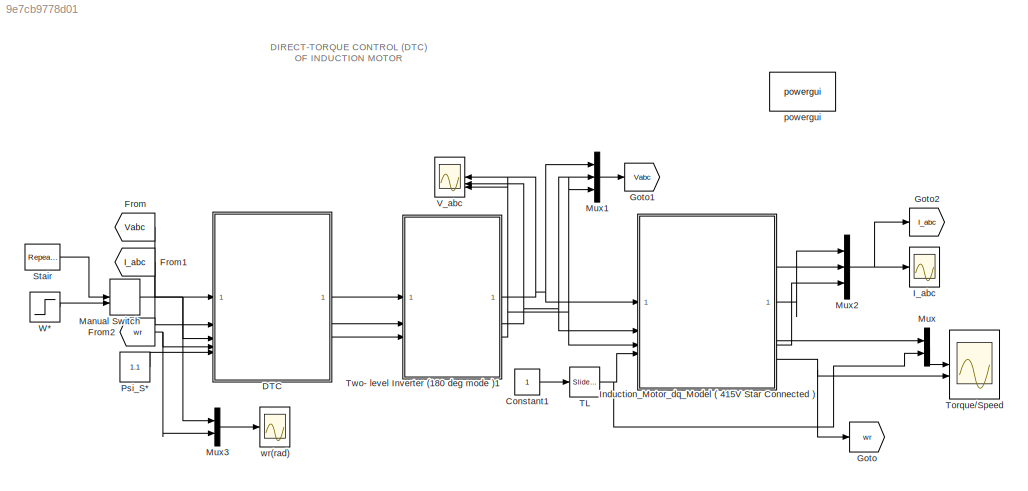
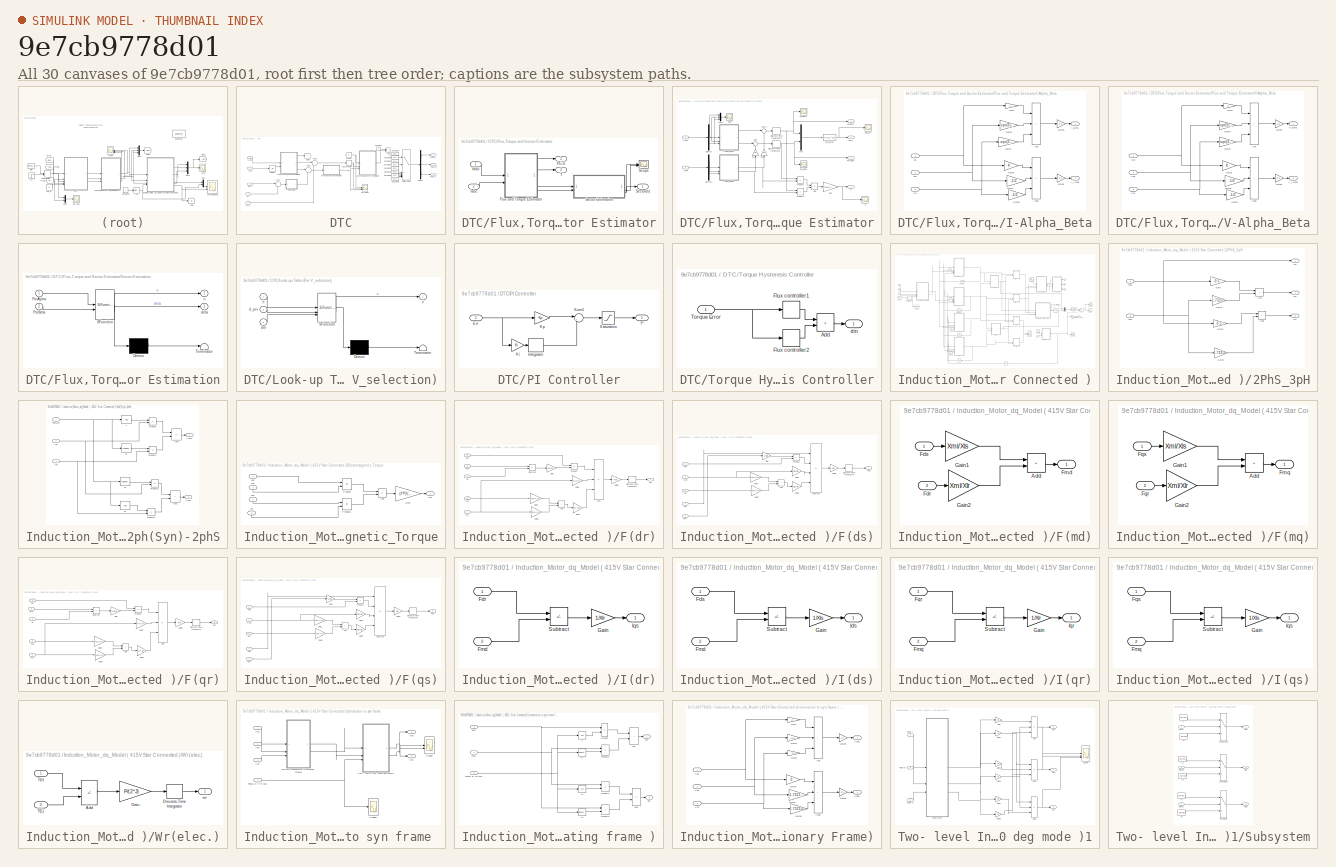
[diagram: thumbnail index - all 30 canvases of the model, root first then tree order]
MODEL slx_9e7cb9778d01
KIND model
CONFIG AbsTol = auto
CONFIG EnableMultiTasking = on
CONFIG FixedStep = Ts
CONFIG InitFcn = Vdc=560;Ts=2e-5;wb=2*pi*50;Rr=2.486;\nRs=4.125;Lls=0.01557;Llr=0.01557;Lm=0.2848;\nXls=4.8915;\nXlr=4.8915;\nXm=89.4726;\nXml=2.3807;\nP=4;\nJ=0.139;\n\nKp=8;\nKi=35;\nTlim=15;\n\nfc=3800;\nF=0.001;
CONFIG MaxStep = Ts
CONFIG MinStep = auto
CONFIG RelTol = 1e-3
CONFIG SampleTimeConstraint = Unconstrained
CONFIG SolverName = FixedStepDiscrete
CONFIG StartTime = 0.0
CONFIG StopTime = 18
BLOCK [Constant] Constant1
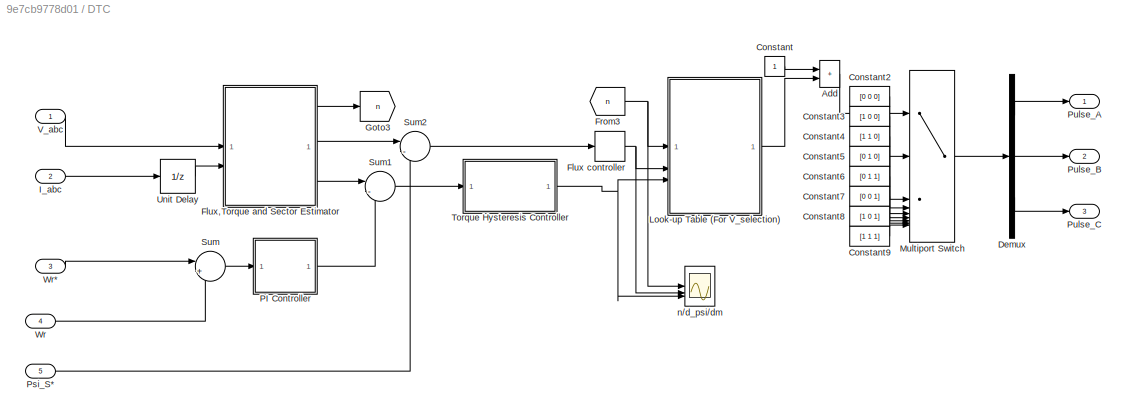
BLOCK [SubSystem] DTC
BLOCK [Sum] DTC/Add
  IconShape = rectangular
BLOCK [Constant] DTC/Constant
BLOCK [Constant] DTC/Constant2
  Value = [0 0 0]
BLOCK [Constant] DTC/Constant3
  Value = [1 0 0]
BLOCK [Constant] DTC/Constant4
  Value = [1 1 0]
BLOCK [Constant] DTC/Constant5
  Value = [0 1 0]
BLOCK [Constant] DTC/Constant6
  Value = [0 1 1]
BLOCK [Constant] DTC/Constant7
  Value = [0 0 1]
BLOCK [Constant] DTC/Constant8
  Value = [1 0 1]
BLOCK [Constant] DTC/Constant9
  Value = [1 1 1]
BLOCK [Demux] DTC/Demux
  Outputs = 3
BLOCK [Relay] DTC/Flux controller
  OffSwitchValue = -0.02
  OnSwitchValue = 0.02
BLOCK [SubSystem] DTC/Flux,Torque and Sector Estimator
BLOCK [SubSystem] DTC/Flux,Torque and Sector Estimator/Flux and Torque Estimator
BLOCK [Sum] DTC/Flux,Torque and Sector Estimator/Flux and Torque Estimator/Add
  IconShape = rectangular
  Inputs = +-
BLOCK [Demux] DTC/Flux,Torque and Sector Estimator/Flux and Torque Estimator/Demux
  Outputs = 3
BLOCK [Demux] DTC/Flux,Torque and Sector Estimator/Flux and Torque Estimator/Demux1
  Outputs = 3
BLOCK [DiscreteIntegrator] DTC/Flux,Torque and Sector Estimator/Flux and Torque Estimator/Discrete-Time Integrator
  ICPrevOutput = DiscIntNeverNeededParam
  ICPrevScaledInput = DiscIntNeverNeededParam
  InitialConditionSetting = Auto
  SampleTime = Ts
BLOCK [DiscreteIntegrator] DTC/Flux,Torque and Sector Estimator/Flux and Torque Estimator/Discrete-Time Integrator1
  ICPrevOutput = DiscIntNeverNeededParam
  ICPrevScaledInput = DiscIntNeverNeededParam
  InitialConditionSetting = Auto
  SampleTime = Ts
BLOCK [SubSystem] DTC/Flux,Torque and Sector Estimator/Flux and Torque Estimator/I-Alpha_Beta
BLOCK [Sum] DTC/Flux,Torque and Sector Estimator/Flux and Torque Estimator/I-Alpha_Beta/Add
  IconShape = rectangular
  Inputs = +++
BLOCK [Sum] DTC/Flux,Torque and Sector Estimator/Flux and Torque Estimator/I-Alpha_Beta/Add1
  IconShape = rectangular
  Inputs = +++
BLOCK [Gain] DTC/Flux,Torque and Sector Estimator/Flux and Torque Estimator/I-Alpha_Beta/Gain
  Gain = 0
BLOCK [Gain] DTC/Flux,Torque and Sector Estimator/Flux and Torque Estimator/I-Alpha_Beta/Gain1
  Gain = sqrt(3)/2
BLOCK [Gain] DTC/Flux,Torque and Sector Estimator/Flux and Torque Estimator/I-Alpha_Beta/Gain2
  Gain = -sqrt(3)/2
BLOCK [Gain] DTC/Flux,Torque and Sector Estimator/Flux and Torque Estimator/I-Alpha_Beta/Gain3
BLOCK [Gain] DTC/Flux,Torque and Sector Estimator/Flux and Torque Estimator/I-Alpha_Beta/Gain4
  Gain = -1/2
BLOCK [Gain] DTC/Flux,Torque and Sector Estimator/Flux and Torque Estimator/I-Alpha_Beta/Gain5
  Gain = -1/2
BLOCK [Gain] DTC/Flux,Torque and Sector Estimator/Flux and Torque Estimator/I-Alpha_Beta/Gain8
  Gain = 2/3
BLOCK [Gain] DTC/Flux,Torque and Sector Estimator/Flux and Torque Estimator/I-Alpha_Beta/Gain9
  Gain = 2/3
BLOCK [Outport] DTC/Flux,Torque and Sector Estimator/Flux and Torque Estimator/I-Alpha_Beta/I_Alpha
  Port = 2
BLOCK [Outport] DTC/Flux,Torque and Sector Estimator/Flux and Torque Estimator/I-Alpha_Beta/I_Beta
BLOCK [Inport] DTC/Flux,Torque and Sector Estimator/Flux and Torque Estimator/I-Alpha_Beta/Ias
BLOCK [Inport] DTC/Flux,Torque and Sector Estimator/Flux and Torque Estimator/I-Alpha_Beta/Ibs
  Port = 2
BLOCK [Inport] DTC/Flux,Torque and Sector Estimator/Flux and Torque Estimator/I-Alpha_Beta/Ics
  Port = 3
BLOCK [Inport] DTC/Flux,Torque and Sector Estimator/Flux and Torque Estimator/I_abc
  Port = 2
BLOCK [Mux] DTC/Flux,Torque and Sector Estimator/Flux and Torque Estimator/Mux
  DisplayOption = bar
  Inputs = 2
BLOCK [Mux] DTC/Flux,Torque and Sector Estimator/Flux and Torque Estimator/Mux1
  DisplayOption = bar
  Inputs = 3
BLOCK [Product] DTC/Flux,Torque and Sector Estimator/Flux and Torque Estimator/Product
BLOCK [Product] DTC/Flux,Torque and Sector Estimator/Flux and Torque Estimator/Product1
BLOCK [Outport] DTC/Flux,Torque and Sector Estimator/Flux and Torque Estimator/Psi-Alpha
  Port = 3
BLOCK [Outport] DTC/Flux,Torque and Sector Estimator/Flux and Torque Estimator/Psi-Beta
  Port = 4
BLOCK [Scope] DTC/Flux,Torque and Sector Estimator/Flux and Torque Estimator/Psi_Alpha
  Floating = off
  NumInputPorts = 1
  ScopeSpecificationString = Simulink.scopes.TimeScopeBlockCfg('CurrentConfiguration', extmgr.ConfigurationSet(extmgr.Configuration('Core','General UI',true),extmgr.Configuration('Core','Source UI',true),extmgr.Configuration('Sources','WiredSimulink',true,'DataLoggingVariableName','ScopeData3','DataLoggingLimitDataPoints',true,'DataLoggingSaveFormat','Array','DataLoggingDecimation','1','DataLoggingDecimateData',true),extmgr.C...<+1508ch>
BLOCK [Scope] DTC/Flux,Torque and Sector Estimator/Flux and Torque Estimator/Psi_Beta
  Floating = off
  NumInputPorts = 1
  ScopeSpecificationString = Simulink.scopes.TimeScopeBlockCfg('CurrentConfiguration', extmgr.ConfigurationSet(extmgr.Configuration('Core','General UI',true),extmgr.Configuration('Core','Source UI',true),extmgr.Configuration('Sources','WiredSimulink',true,'DataLoggingVariableName','ScopeData2','DataLoggingLimitDataPoints',true,'DataLoggingSaveFormat','Array','DataLoggingDecimation','1','DataLoggingDecimateData',true),extmgr.C...<+1509ch>
BLOCK [Outport] DTC/Flux,Torque and Sector Estimator/Flux and Torque Estimator/Psi_S
BLOCK [Fcn] DTC/Flux,Torque and Sector Estimator/Flux and Torque Estimator/Psi_Stator
  Expr = sqrt(u(1)^2+u(2)^2)
BLOCK [Scope] DTC/Flux,Torque and Sector Estimator/Flux and Torque Estimator/Psi_Sttr
  Floating = off
  NumInputPorts = 1
  ScopeSpecificationString = Simulink.scopes.TimeScopeBlockCfg('CurrentConfiguration', extmgr.ConfigurationSet(extmgr.Configuration('Core','General UI',true),extmgr.Configuration('Core','Source UI',true),extmgr.Configuration('Sources','WiredSimulink',true,'DataLoggingVariableName','ScopeData3','DataLoggingLimitDataPoints',true,'DataLoggingSaveFormat','Array','DataLoggingDecimation','1','DataLoggingDecimateData',true),extmgr.C...<+1591ch>
BLOCK [Gain] DTC/Flux,Torque and Sector Estimator/Flux and Torque Estimator/Rs
  Gain = Rs
  NameLocation = right
BLOCK [Gain] DTC/Flux,Torque and Sector Estimator/Flux and Torque Estimator/Rs1
  Gain = Rs
  NameLocation = right
BLOCK [Gain] DTC/Flux,Torque and Sector Estimator/Flux and Torque Estimator/Rs2
  Gain = (3/2)*(P/2)
BLOCK [Sum] DTC/Flux,Torque and Sector Estimator/Flux and Torque Estimator/Sum
  Inputs = |+-
BLOCK [Sum] DTC/Flux,Torque and Sector Estimator/Flux and Torque Estimator/Sum1
  Inputs = |+-
BLOCK [Outport] DTC/Flux,Torque and Sector Estimator/Flux and Torque Estimator/T'
  Port = 2
BLOCK [SubSystem] DTC/Flux,Torque and Sector Estimator/Flux and Torque Estimator/V-Alpha_Beta
BLOCK [Sum] DTC/Flux,Torque and Sector Estimator/Flux and Torque Estimator/V-Alpha_Beta/Add
  IconShape = rectangular
  Inputs = +++
BLOCK [Sum] DTC/Flux,Torque and Sector Estimator/Flux and Torque Estimator/V-Alpha_Beta/Add1
  IconShape = rectangular
  Inputs = +++
BLOCK [Gain] DTC/Flux,Torque and Sector Estimator/Flux and Torque Estimator/V-Alpha_Beta/Gain
  Gain = 0
BLOCK [Gain] DTC/Flux,Torque and Sector Estimator/Flux and Torque Estimator/V-Alpha_Beta/Gain1
  Gain = sqrt(3)/2
BLOCK [Gain] DTC/Flux,Torque and Sector Estimator/Flux and Torque Estimator/V-Alpha_Beta/Gain2
  Gain = -sqrt(3)/2
BLOCK [Gain] DTC/Flux,Torque and Sector Estimator/Flux and Torque Estimator/V-Alpha_Beta/Gain3
BLOCK [Gain] DTC/Flux,Torque and Sector Estimator/Flux and Torque Estimator/V-Alpha_Beta/Gain4
  Gain = -1/2
BLOCK [Gain] DTC/Flux,Torque and Sector Estimator/Flux and Torque Estimator/V-Alpha_Beta/Gain5
  Gain = -1/2
BLOCK [Gain] DTC/Flux,Torque and Sector Estimator/Flux and Torque Estimator/V-Alpha_Beta/Gain8
  Gain = 2/3
BLOCK [Gain] DTC/Flux,Torque and Sector Estimator/Flux and Torque Estimator/V-Alpha_Beta/Gain9
  Gain = 2/3
BLOCK [Outport] DTC/Flux,Torque and Sector Estimator/Flux and Torque Estimator/V-Alpha_Beta/V_Alpha
  Port = 2
BLOCK [Outport] DTC/Flux,Torque and Sector Estimator/Flux and Torque Estimator/V-Alpha_Beta/V_Beta
BLOCK [Inport] DTC/Flux,Torque and Sector Estimator/Flux and Torque Estimator/V-Alpha_Beta/Vas
BLOCK [Inport] DTC/Flux,Torque and Sector Estimator/Flux and Torque Estimator/V-Alpha_Beta/Vbs
  Port = 2
BLOCK [Inport] DTC/Flux,Torque and Sector Estimator/Flux and Torque Estimator/V-Alpha_Beta/Vcs
  Port = 3
BLOCK [Inport] DTC/Flux,Torque and Sector Estimator/Flux and Torque Estimator/V_abc
BLOCK [Scope] DTC/Flux,Torque and Sector Estimator/Flux and Torque Estimator/Vabc
  Floating = off
  NumInputPorts = 1
  ScopeSpecificationString = Simulink.scopes.TimeScopeBlockCfg('CurrentConfiguration', extmgr.ConfigurationSet(extmgr.Configuration('Core','General UI',true),extmgr.Configuration('Core','Source UI',true),extmgr.Configuration('Sources','WiredSimulink',true,'DataLoggingVariableName','ScopeData4','DataLoggingLimitDataPoints',true,'DataLoggingSaveFormat','Array','DataLoggingDecimation','1','DataLoggingDecimateData',true),extmgr.C...<+1625ch>
BLOCK [Scope] DTC/Flux,Torque and Sector Estimator/Flux and Torque Estimator/_T'
  Floating = off
  NumInputPorts = 1
  ScopeSpecificationString = Simulink.scopes.TimeScopeBlockCfg('CurrentConfiguration', extmgr.ConfigurationSet(extmgr.Configuration('Core','General UI',true),extmgr.Configuration('Core','Source UI',true),extmgr.Configuration('Sources','WiredSimulink',true,'DataLoggingVariableName','ScopeData1','DataLoggingLimitDataPoints',true,'DataLoggingSaveFormat','Array','DataLoggingDecimation','1','DataLoggingDecimateData',true),extmgr.C...<+1587ch>
BLOCK [Inport] DTC/Flux,Torque and Sector Estimator/Iabc
  Port = 2
BLOCK [Outport] DTC/Flux,Torque and Sector Estimator/Psi-S
  Port = 2
BLOCK [Scope] DTC/Flux,Torque and Sector Estimator/Scope
  Floating = off
  NumInputPorts = 2
  ScopeSpecificationString = Simulink.scopes.TimeScopeBlockCfg('CurrentConfiguration', extmgr.ConfigurationSet(extmgr.Configuration('Core','General UI',true),extmgr.Configuration('Core','Source UI',true),extmgr.Configuration('Sources','WiredSimulink',true,'DataLoggingVariableName','ScopeData1'),extmgr.Configuration('Visuals','Time Domain',true,'SerializedDisplays',{struct('MinYLimReal','0.375','MaxYLimReal','6.625','YLabelRea...<+2124ch>
BLOCK [SubSystem] DTC/Flux,Torque and Sector Estimator/Sector Estimation
  ErrorFcn = Stateflow.Translate.translate
  PermitHierarchicalResolution = ExplicitOnly
  SFBlockType = MATLAB Function
  TreatAsAtomicUnit = on
BLOCK [Demux] DTC/Flux,Torque and Sector Estimator/Sector Estimation/ Demux 
  Outputs = 1
BLOCK [S-Function] DTC/Flux,Torque and Sector Estimator/Sector Estimation/ SFunction 
  EnableBusSupport = on
  FunctionName = sf_sfun
  PortCounts = [2 3]
  SFcnIsStateOwnerBlock = off
  SFunctionDeploymentMode = off
  Tag = Stateflow S-Function 2
BLOCK [Terminator] DTC/Flux,Torque and Sector Estimator/Sector Estimation/ Terminator 
BLOCK [Inport] DTC/Flux,Torque and Sector Estimator/Sector Estimation/PsiAlpha
BLOCK [Inport] DTC/Flux,Torque and Sector Estimator/Sector Estimation/PsiBeta
  Port = 2
BLOCK [Outport] DTC/Flux,Torque and Sector Estimator/Sector Estimation/deta
  Port = 2
BLOCK [Outport] DTC/Flux,Torque and Sector Estimator/Sector Estimation/n
BLOCK [Outport] DTC/Flux,Torque and Sector Estimator/Sector(n)
BLOCK [Outport] DTC/Flux,Torque and Sector Estimator/T
  Port = 3
BLOCK [Inport] DTC/Flux,Torque and Sector Estimator/Vabc
BLOCK [From] DTC/From3
  GotoTag = n
BLOCK [Goto] DTC/Goto3
  GotoTag = n
BLOCK [Inport] DTC/I_abc
  Port = 2
BLOCK [SubSystem] DTC/Look-up Table (For V_selection)
  ErrorFcn = Stateflow.Translate.translate
  PermitHierarchicalResolution = ExplicitOnly
  SFBlockType = MATLAB Function
  TreatAsAtomicUnit = on
BLOCK [Demux] DTC/Look-up Table (For V_selection)/ Demux 
  Outputs = 1
BLOCK [S-Function] DTC/Look-up Table (For V_selection)/ SFunction 
  EnableBusSupport = on
  FunctionName = sf_sfun
  PortCounts = [3 2]
  SFcnIsStateOwnerBlock = off
  SFunctionDeploymentMode = off
  Tag = Stateflow S-Function 1
BLOCK [Terminator] DTC/Look-up Table (For V_selection)/ Terminator 
BLOCK [Inport] DTC/Look-up Table (For V_selection)/d_psi
  Port = 2
BLOCK [Inport] DTC/Look-up Table (For V_selection)/dm
  Port = 3
BLOCK [Inport] DTC/Look-up Table (For V_selection)/n
BLOCK [Outport] DTC/Look-up Table (For V_selection)/v
BLOCK [MultiPortSwitch] DTC/Multiport Switch
  InputSameDT = off
  Inputs = 8
  SaturateOnIntegerOverflow = off
BLOCK [SubSystem] DTC/PI Controller
BLOCK [Inport] DTC/PI Controller/Err
BLOCK [DiscreteIntegrator] DTC/PI Controller/Integrator 
  ICPrevOutput = DiscIntNeverNeededParam
  ICPrevScaledInput = DiscIntNeverNeededParam
  InitialConditionSetting = Auto
  LimitOutput = on
  LowerSaturationLimit = -Tlim
  SampleTime = Ts
  UpperSaturationLimit = Tlim
BLOCK [Gain] DTC/PI Controller/Ki
  Gain = Ki
BLOCK [Gain] DTC/PI Controller/Kp
  Gain = Kp
BLOCK [Saturate] DTC/PI Controller/Saturation
  LowerLimit = -Tlim
  UpperLimit = Tlim
BLOCK [Sum] DTC/PI Controller/Sum1
  Inputs = |++
BLOCK [Outport] DTC/PI Controller/T*
BLOCK [Inport] DTC/Psi_S*
  Port = 5
BLOCK [Outport] DTC/Pulse_A
BLOCK [Outport] DTC/Pulse_B
  Port = 2
BLOCK [Outport] DTC/Pulse_C
  Port = 3
BLOCK [Sum] DTC/Sum
  Inputs = |+-
BLOCK [Sum] DTC/Sum1
  Inputs = |-+
BLOCK [Sum] DTC/Sum2
  Inputs = |-+
BLOCK [SubSystem] DTC/Torque Hysteresis Controller
BLOCK [Sum] DTC/Torque Hysteresis Controller/Add
  IconShape = rectangular
BLOCK [Relay] DTC/Torque Hysteresis Controller/Flux controller1
  OffSwitchValue = 0
  OnSwitchValue = 0.2
BLOCK [Relay] DTC/Torque Hysteresis Controller/Flux controller2
  OffOutputValue = -1
  OffSwitchValue = -0.2
  OnOutputValue = 0
  OnSwitchValue = 0
BLOCK [Inport] DTC/Torque Hysteresis Controller/Torque Error
BLOCK [Outport] DTC/Torque Hysteresis Controller/dm
BLOCK [UnitDelay] DTC/Unit Delay
  HasFrameUpgradeWarning = on
  SampleTime = -1
BLOCK [Inport] DTC/V_abc
BLOCK [Inport] DTC/Wr
  Port = 4
BLOCK [Inport] DTC/Wr*
  Port = 3
BLOCK [Scope] DTC/n//d_psi//dm
  Floating = off
  NumInputPorts = 3
  ScopeSpecificationString = Simulink.scopes.TimeScopeBlockCfg('CurrentConfiguration', extmgr.ConfigurationSet(extmgr.Configuration('Core','General UI',true),extmgr.Configuration('Core','Source UI',true),extmgr.Configuration('Sources','WiredSimulink',true,'DataLoggingVariableName','ScopeData5'),extmgr.Configuration('Visuals','Time Domain',true,'SerializedDisplays',{struct('MinYLimReal','0.375','MaxYLimReal','6.625','YLabelRea...<+2793ch>
BLOCK [From] From
  GotoTag = Vabc
BLOCK [From] From1
  GotoTag = I_abc
BLOCK [From] From2
  GotoTag = wr
BLOCK [Goto] Goto
  GotoTag = wr
BLOCK [Goto] Goto1
  GotoTag = Vabc
BLOCK [Goto] Goto2
  GotoTag = I_abc
BLOCK [Scope] I_abc
  Floating = off
  NumInputPorts = 1
  ScopeSpecificationString = Simulink.scopes.TimeScopeBlockCfg('CurrentConfiguration', extmgr.ConfigurationSet(extmgr.Configuration('Core','General UI',true),extmgr.Configuration('Core','Source UI',true),extmgr.Configuration('Sources','WiredSimulink',true,'DataLoggingVariableName','ScopeData2'),extmgr.Configuration('Visuals','Time Domain',true,'SerializedDisplays',{struct('MinYLimReal','-26.28396','MaxYLimReal','30.13845','YL...<+2004ch>
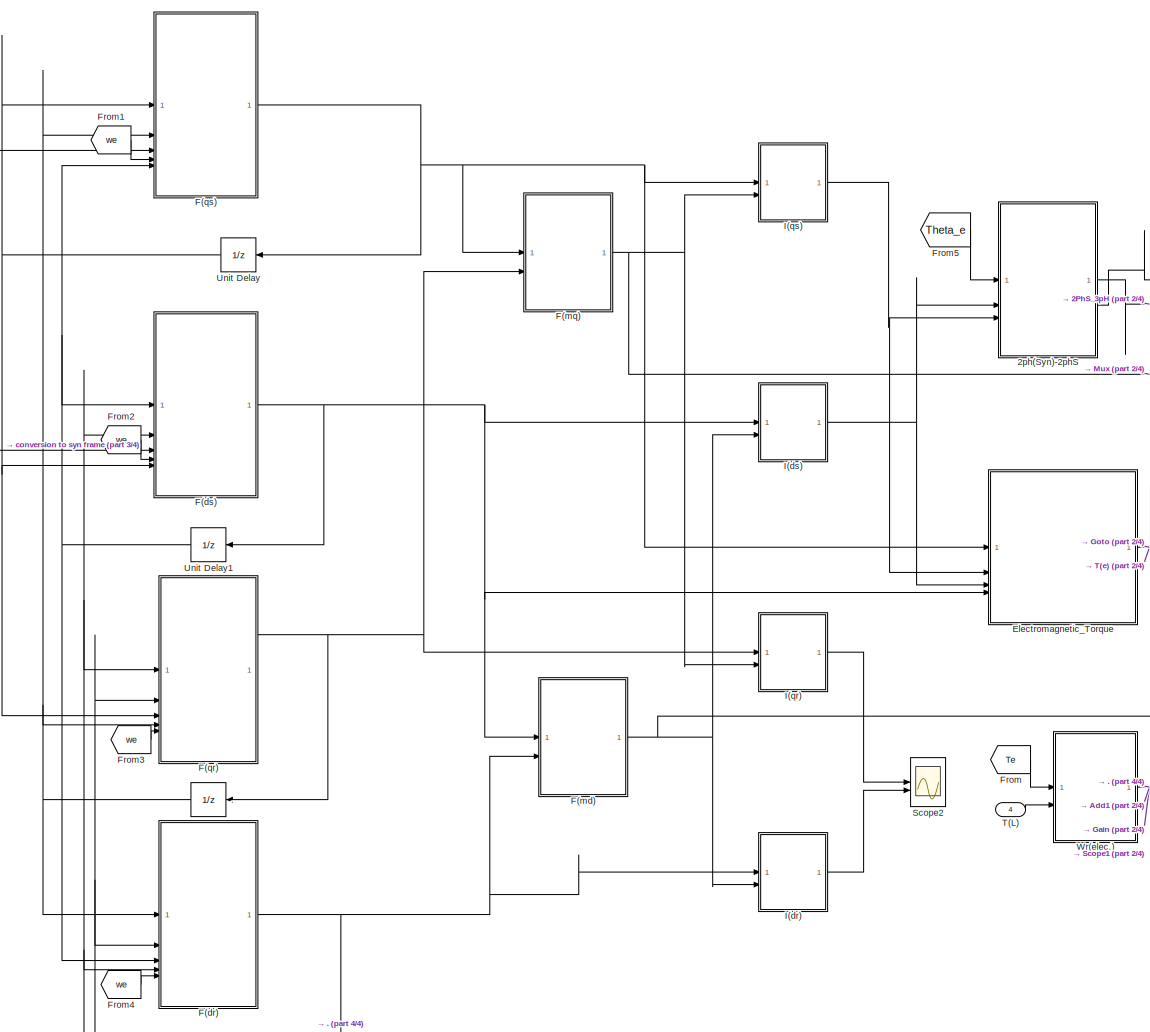
[diagram: Induction_Motor_dq_Model ( 415V Star Connected ) - part 1/4, center side, full height]
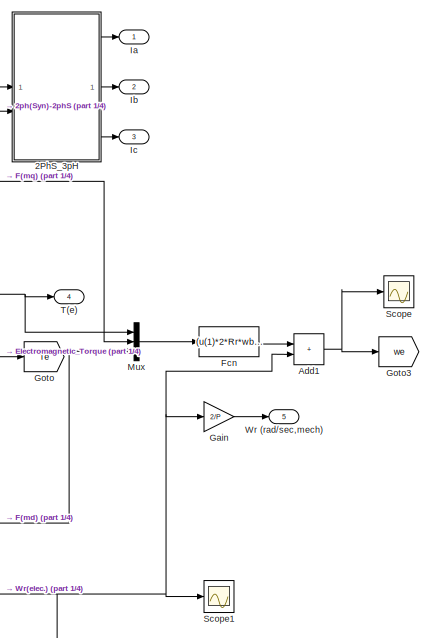
[diagram: Induction_Motor_dq_Model ( 415V Star Connected ) - part 2/4, middle right region]
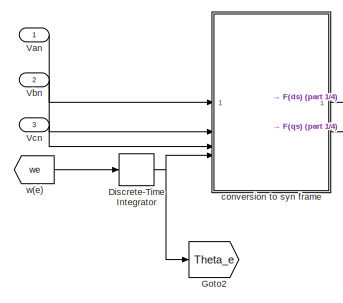
[diagram: Induction_Motor_dq_Model ( 415V Star Connected ) - part 3/4, middle left region]
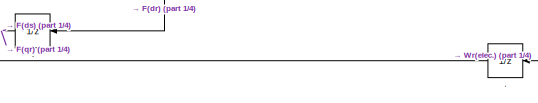
[diagram: Induction_Motor_dq_Model ( 415V Star Connected ) - part 4/4, bottom center region]
BLOCK [SubSystem] Induction_Motor_dq_Model ( 415V Star Connected )
BLOCK [UnitDelay] Induction_Motor_dq_Model ( 415V Star Connected )/.
  HasFrameUpgradeWarning = on
  NameLocation = top
  SampleTime = Ts
BLOCK [UnitDelay] Induction_Motor_dq_Model ( 415V Star Connected )/. 
  HasFrameUpgradeWarning = on
  NameLocation = top
  SampleTime = Ts
BLOCK [UnitDelay] Induction_Motor_dq_Model ( 415V Star Connected )/.  
  HasFrameUpgradeWarning = on
  NameLocation = top
  SampleTime = Ts
BLOCK [SubSystem] Induction_Motor_dq_Model ( 415V Star Connected )/2PhS_3pH
BLOCK [Sum] Induction_Motor_dq_Model ( 415V Star Connected )/2PhS_3pH/Add
  IconShape = rectangular
BLOCK [Sum] Induction_Motor_dq_Model ( 415V Star Connected )/2PhS_3pH/Add1
  IconShape = rectangular
BLOCK [Gain] Induction_Motor_dq_Model ( 415V Star Connected )/2PhS_3pH/Gain
  Gain = -0.5
BLOCK [Gain] Induction_Motor_dq_Model ( 415V Star Connected )/2PhS_3pH/Gain1
  Gain = -1.732/2
BLOCK [Gain] Induction_Motor_dq_Model ( 415V Star Connected )/2PhS_3pH/Gain2
  Gain = -0.5
BLOCK [Gain] Induction_Motor_dq_Model ( 415V Star Connected )/2PhS_3pH/Gain3
  Gain = 1.732/2
BLOCK [Outport] Induction_Motor_dq_Model ( 415V Star Connected )/2PhS_3pH/Ias
BLOCK [Outport] Induction_Motor_dq_Model ( 415V Star Connected )/2PhS_3pH/Ibs
  Port = 2
BLOCK [Outport] Induction_Motor_dq_Model ( 415V Star Connected )/2PhS_3pH/Ics
  Port = 3
BLOCK [Inport] Induction_Motor_dq_Model ( 415V Star Connected )/2PhS_3pH/Idss
  Port = 2
BLOCK [Inport] Induction_Motor_dq_Model ( 415V Star Connected )/2PhS_3pH/Iqss
BLOCK [SubSystem] Induction_Motor_dq_Model ( 415V Star Connected )/2ph(Syn)-2phS
BLOCK [Outport] Induction_Motor_dq_Model ( 415V Star Connected )/2ph(Syn)-2phS/I(dss)
BLOCK [Outport] Induction_Motor_dq_Model ( 415V Star Connected )/2ph(Syn)-2phS/I(qss)
  Port = 2
BLOCK [Inport] Induction_Motor_dq_Model ( 415V Star Connected )/2ph(Syn)-2phS/Ids
  Port = 2
BLOCK [Sum] Induction_Motor_dq_Model ( 415V Star Connected )/2ph(Syn)-2phS/Idss
  IconShape = rectangular
  Inputs = +-
BLOCK [Inport] Induction_Motor_dq_Model ( 415V Star Connected )/2ph(Syn)-2phS/Iqs
  Port = 3
BLOCK [Sum] Induction_Motor_dq_Model ( 415V Star Connected )/2ph(Syn)-2phS/Iqss
  IconShape = rectangular
BLOCK [Product] Induction_Motor_dq_Model ( 415V Star Connected )/2ph(Syn)-2phS/Product
BLOCK [Product] Induction_Motor_dq_Model ( 415V Star Connected )/2ph(Syn)-2phS/Product1
BLOCK [Product] Induction_Motor_dq_Model ( 415V Star Connected )/2ph(Syn)-2phS/Product2
BLOCK [Product] Induction_Motor_dq_Model ( 415V Star Connected )/2ph(Syn)-2phS/Product3
BLOCK [Trigonometry] Induction_Motor_dq_Model ( 415V Star Connected )/2ph(Syn)-2phS/T
  Operator = cos
BLOCK [Trigonometry] Induction_Motor_dq_Model ( 415V Star Connected )/2ph(Syn)-2phS/T1
BLOCK [Trigonometry] Induction_Motor_dq_Model ( 415V Star Connected )/2ph(Syn)-2phS/T2
BLOCK [Trigonometry] Induction_Motor_dq_Model ( 415V Star Connected )/2ph(Syn)-2phS/T3
  Operator = cos
BLOCK [Inport] Induction_Motor_dq_Model ( 415V Star Connected )/2ph(Syn)-2phS/Theta(e)
BLOCK [Sum] Induction_Motor_dq_Model ( 415V Star Connected )/Add1
  IconShape = rectangular
BLOCK [DiscreteIntegrator] Induction_Motor_dq_Model ( 415V Star Connected )/Discrete-Time Integrator
  ICPrevOutput = DiscIntNeverNeededParam
  ICPrevScaledInput = DiscIntNeverNeededParam
  InitialConditionSetting = Auto
  SampleTime = Ts
BLOCK [SubSystem] Induction_Motor_dq_Model ( 415V Star Connected )/Electromagnetic_Torque
BLOCK [Sum] Induction_Motor_dq_Model ( 415V Star Connected )/Electromagnetic_Torque/Add
  IconShape = rectangular
  Inputs = +-
BLOCK [Inport] Induction_Motor_dq_Model ( 415V Star Connected )/Electromagnetic_Torque/Fds
  Port = 4
BLOCK [Inport] Induction_Motor_dq_Model ( 415V Star Connected )/Electromagnetic_Torque/Fqs
  NameLocation = right
BLOCK [Gain] Induction_Motor_dq_Model ( 415V Star Connected )/Electromagnetic_Torque/Gain
  Gain = (3*P)/(4*wb)
BLOCK [Inport] Induction_Motor_dq_Model ( 415V Star Connected )/Electromagnetic_Torque/Ids
  NameLocation = right
  Port = 3
BLOCK [Inport] Induction_Motor_dq_Model ( 415V Star Connected )/Electromagnetic_Torque/Iqs
  NameLocation = right
  Port = 2
BLOCK [Product] Induction_Motor_dq_Model ( 415V Star Connected )/Electromagnetic_Torque/Product
BLOCK [Product] Induction_Motor_dq_Model ( 415V Star Connected )/Electromagnetic_Torque/Product1
BLOCK [Outport] Induction_Motor_dq_Model ( 415V Star Connected )/Electromagnetic_Torque/T(e)
BLOCK [SubSystem] Induction_Motor_dq_Model ( 415V Star Connected )/F(dr)
BLOCK [Sum] Induction_Motor_dq_Model ( 415V Star Connected )/F(dr)/Add
  IconShape = rectangular
BLOCK [DiscreteIntegrator] Induction_Motor_dq_Model ( 415V Star Connected )/F(dr)/Discrete-Time Integrator
  ICPrevOutput = DiscIntNeverNeededParam
  ICPrevScaledInput = DiscIntNeverNeededParam
  InitialConditionSetting = Auto
  SampleTime = Ts
BLOCK [Inport] Induction_Motor_dq_Model ( 415V Star Connected )/F(dr)/Fd_r
  Port = 4
BLOCK [Outport] Induction_Motor_dq_Model ( 415V Star Connected )/F(dr)/Fdr
BLOCK [Inport] Induction_Motor_dq_Model ( 415V Star Connected )/F(dr)/Fds
  Port = 3
BLOCK [Inport] Induction_Motor_dq_Model ( 415V Star Connected )/F(dr)/Fqr
BLOCK [Gain] Induction_Motor_dq_Model ( 415V Star Connected )/F(dr)/Gain
  Gain = 1/wb
BLOCK [Gain] Induction_Motor_dq_Model ( 415V Star Connected )/F(dr)/Gain1
  Gain = Rr/Xlr
BLOCK [Gain] Induction_Motor_dq_Model ( 415V Star Connected )/F(dr)/Gain2
  Gain = Xml/Xls
BLOCK [Gain] Induction_Motor_dq_Model ( 415V Star Connected )/F(dr)/Gain3
  Gain = Xml/Xlr
BLOCK [Gain] Induction_Motor_dq_Model ( 415V Star Connected )/F(dr)/Gain4
  Gain = Rr/Xlr
BLOCK [Gain] Induction_Motor_dq_Model ( 415V Star Connected )/F(dr)/Gain5
  Gain = -wb
BLOCK [Product] Induction_Motor_dq_Model ( 415V Star Connected )/F(dr)/Product
BLOCK [Sum] Induction_Motor_dq_Model ( 415V Star Connected )/F(dr)/Subtract
  IconShape = rectangular
  Inputs = -+
BLOCK [Sum] Induction_Motor_dq_Model ( 415V Star Connected )/F(dr)/add
  IconShape = rectangular
  Inputs = ++-
BLOCK [Inport] Induction_Motor_dq_Model ( 415V Star Connected )/F(dr)/w(e)
  Port = 5
BLOCK [Inport] Induction_Motor_dq_Model ( 415V Star Connected )/F(dr)/wr
  Port = 2
BLOCK [SubSystem] Induction_Motor_dq_Model ( 415V Star Connected )/F(ds)
BLOCK [Sum] Induction_Motor_dq_Model ( 415V Star Connected )/F(ds)/Add
  IconShape = rectangular
BLOCK [DiscreteIntegrator] Induction_Motor_dq_Model ( 415V Star Connected )/F(ds)/Discrete-Time Integrator
  ICPrevOutput = DiscIntNeverNeededParam
  ICPrevScaledInput = DiscIntNeverNeededParam
  InitialConditionSetting = Auto
  SampleTime = Ts
BLOCK [Inport] Induction_Motor_dq_Model ( 415V Star Connected )/F(ds)/F_ds
BLOCK [Inport] Induction_Motor_dq_Model ( 415V Star Connected )/F(ds)/Fdr
  Port = 2
BLOCK [Outport] Induction_Motor_dq_Model ( 415V Star Connected )/F(ds)/Fds
BLOCK [Inport] Induction_Motor_dq_Model ( 415V Star Connected )/F(ds)/Fqs
  Port = 5
BLOCK [Gain] Induction_Motor_dq_Model ( 415V Star Connected )/F(ds)/Gain
  Gain = 1/wb
BLOCK [Gain] Induction_Motor_dq_Model ( 415V Star Connected )/F(ds)/Gain1
  Gain = Xml/Xls
BLOCK [Gain] Induction_Motor_dq_Model ( 415V Star Connected )/F(ds)/Gain2
  Gain = Xml/Xlr
BLOCK [Gain] Induction_Motor_dq_Model ( 415V Star Connected )/F(ds)/Gain3
  Gain = Rs/Xls
BLOCK [Gain] Induction_Motor_dq_Model ( 415V Star Connected )/F(ds)/Gain4
  Gain = Rs/Xls
BLOCK [Gain] Induction_Motor_dq_Model ( 415V Star Connected )/F(ds)/Gain5
  Gain = wb
BLOCK [Product] Induction_Motor_dq_Model ( 415V Star Connected )/F(ds)/Product
BLOCK [Sum] Induction_Motor_dq_Model ( 415V Star Connected )/F(ds)/Subtract
  IconShape = rectangular
  Inputs = ++-+
BLOCK [Inport] Induction_Motor_dq_Model ( 415V Star Connected )/F(ds)/Vds
  Port = 3
BLOCK [Inport] Induction_Motor_dq_Model ( 415V Star Connected )/F(ds)/w(e) 
  Port = 4
BLOCK [SubSystem] Induction_Motor_dq_Model ( 415V Star Connected )/F(md)
BLOCK [Sum] Induction_Motor_dq_Model ( 415V Star Connected )/F(md)/Add
  IconShape = rectangular
BLOCK [Inport] Induction_Motor_dq_Model ( 415V Star Connected )/F(md)/Fdr
  Port = 2
BLOCK [Inport] Induction_Motor_dq_Model ( 415V Star Connected )/F(md)/Fds
BLOCK [Outport] Induction_Motor_dq_Model ( 415V Star Connected )/F(md)/Fmd
BLOCK [Gain] Induction_Motor_dq_Model ( 415V Star Connected )/F(md)/Gain1
  Gain = Xml/Xls
BLOCK [Gain] Induction_Motor_dq_Model ( 415V Star Connected )/F(md)/Gain2
  Gain = Xml/Xlr
BLOCK [SubSystem] Induction_Motor_dq_Model ( 415V Star Connected )/F(mq)
BLOCK [Sum] Induction_Motor_dq_Model ( 415V Star Connected )/F(mq)/Add
  IconShape = rectangular
BLOCK [Outport] Induction_Motor_dq_Model ( 415V Star Connected )/F(mq)/Fmq
BLOCK [Inport] Induction_Motor_dq_Model ( 415V Star Connected )/F(mq)/Fqr
  Port = 2
BLOCK [Inport] Induction_Motor_dq_Model ( 415V Star Connected )/F(mq)/Fqs
BLOCK [Gain] Induction_Motor_dq_Model ( 415V Star Connected )/F(mq)/Gain1
  Gain = Xml/Xls
BLOCK [Gain] Induction_Motor_dq_Model ( 415V Star Connected )/F(mq)/Gain2
  Gain = Xml/Xlr
BLOCK [SubSystem] Induction_Motor_dq_Model ( 415V Star Connected )/F(qr)
BLOCK [Sum] Induction_Motor_dq_Model ( 415V Star Connected )/F(qr)/Add
  IconShape = rectangular
BLOCK [DiscreteIntegrator] Induction_Motor_dq_Model ( 415V Star Connected )/F(qr)/Discrete-Time Integrator
  ICPrevOutput = DiscIntNeverNeededParam
  ICPrevScaledInput = DiscIntNeverNeededParam
  InitialConditionSetting = Auto
  SampleTime = Ts
BLOCK [Inport] Induction_Motor_dq_Model ( 415V Star Connected )/F(qr)/Fdr
BLOCK [Inport] Induction_Motor_dq_Model ( 415V Star Connected )/F(qr)/Fq_r
  Port = 4
BLOCK [Outport] Induction_Motor_dq_Model ( 415V Star Connected )/F(qr)/Fqr
BLOCK [Inport] Induction_Motor_dq_Model ( 415V Star Connected )/F(qr)/Fqs
  Port = 3
BLOCK [Gain] Induction_Motor_dq_Model ( 415V Star Connected )/F(qr)/Gain
  Gain = 1/wb
BLOCK [Gain] Induction_Motor_dq_Model ( 415V Star Connected )/F(qr)/Gain1
  Gain = Rr/Xlr
BLOCK [Gain] Induction_Motor_dq_Model ( 415V Star Connected )/F(qr)/Gain2
  Gain = Xml/Xls
BLOCK [Gain] Induction_Motor_dq_Model ( 415V Star Connected )/F(qr)/Gain3
  Gain = Xml/Xlr
BLOCK [Gain] Induction_Motor_dq_Model ( 415V Star Connected )/F(qr)/Gain4
  Gain = Rr/Xlr
BLOCK [Gain] Induction_Motor_dq_Model ( 415V Star Connected )/F(qr)/Gain5
  Gain = -wb
BLOCK [Product] Induction_Motor_dq_Model ( 415V Star Connected )/F(qr)/Product
BLOCK [Sum] Induction_Motor_dq_Model ( 415V Star Connected )/F(qr)/Subtract
  IconShape = rectangular
  Inputs = +-
BLOCK [Sum] Induction_Motor_dq_Model ( 415V Star Connected )/F(qr)/add
  IconShape = rectangular
  Inputs = ++-
BLOCK [Inport] Induction_Motor_dq_Model ( 415V Star Connected )/F(qr)/w(e)
  Port = 5
BLOCK [Inport] Induction_Motor_dq_Model ( 415V Star Connected )/F(qr)/wr
  Port = 2
BLOCK [SubSystem] Induction_Motor_dq_Model ( 415V Star Connected )/F(qs)
BLOCK [Sum] Induction_Motor_dq_Model ( 415V Star Connected )/F(qs)/Add
  IconShape = rectangular
BLOCK [DiscreteIntegrator] Induction_Motor_dq_Model ( 415V Star Connected )/F(qs)/Discrete-Time Integrator
  ICPrevOutput = DiscIntNeverNeededParam
  ICPrevScaledInput = DiscIntNeverNeededParam
  InitialConditionSetting = Auto
  SampleTime = Ts
BLOCK [Inport] Induction_Motor_dq_Model ( 415V Star Connected )/F(qs)/F_qs
BLOCK [Inport] Induction_Motor_dq_Model ( 415V Star Connected )/F(qs)/Fds
  Port = 5
BLOCK [Inport] Induction_Motor_dq_Model ( 415V Star Connected )/F(qs)/Fqr
  Port = 2
BLOCK [Outport] Induction_Motor_dq_Model ( 415V Star Connected )/F(qs)/Fqs
BLOCK [Gain] Induction_Motor_dq_Model ( 415V Star Connected )/F(qs)/Gain
  Gain = 1/wb
BLOCK [Gain] Induction_Motor_dq_Model ( 415V Star Connected )/F(qs)/Gain1
  Gain = Xml/Xls
BLOCK [Gain] Induction_Motor_dq_Model ( 415V Star Connected )/F(qs)/Gain2
  Gain = Xml/Xlr
BLOCK [Gain] Induction_Motor_dq_Model ( 415V Star Connected )/F(qs)/Gain3
  Gain = Rs/Xls
BLOCK [Gain] Induction_Motor_dq_Model ( 415V Star Connected )/F(qs)/Gain4
  Gain = Rs/Xls
BLOCK [Gain] Induction_Motor_dq_Model ( 415V Star Connected )/F(qs)/Gain5
  Gain = wb
BLOCK [Product] Induction_Motor_dq_Model ( 415V Star Connected )/F(qs)/Product
BLOCK [Sum] Induction_Motor_dq_Model ( 415V Star Connected )/F(qs)/Subtract
  IconShape = rectangular
  Inputs = +--+
BLOCK [Inport] Induction_Motor_dq_Model ( 415V Star Connected )/F(qs)/Vqs
  Port = 3
BLOCK [Inport] Induction_Motor_dq_Model ( 415V Star Connected )/F(qs)/w(e) 
  Port = 4
BLOCK [Fcn] Induction_Motor_dq_Model ( 415V Star Connected )/Fcn
  Expr = (u(1)*2*Rr*wb*wb)/(3*P*(u(2)^2+u(3)^2)+0.00001)
BLOCK [From] Induction_Motor_dq_Model ( 415V Star Connected )/From
  GotoTag = Te
BLOCK [From] Induction_Motor_dq_Model ( 415V Star Connected )/From1
  GotoTag = we
BLOCK [From] Induction_Motor_dq_Model ( 415V Star Connected )/From2
  GotoTag = we
BLOCK [From] Induction_Motor_dq_Model ( 415V Star Connected )/From3
  GotoTag = we
BLOCK [From] Induction_Motor_dq_Model ( 415V Star Connected )/From4
  GotoTag = we
BLOCK [From] Induction_Motor_dq_Model ( 415V Star Connected )/From5
  GotoTag = Theta_e
BLOCK [Gain] Induction_Motor_dq_Model ( 415V Star Connected )/Gain
  Gain = 2/P
BLOCK [Goto] Induction_Motor_dq_Model ( 415V Star Connected )/Goto
  GotoTag = Te
BLOCK [Goto] Induction_Motor_dq_Model ( 415V Star Connected )/Goto2
  GotoTag = Theta_e
BLOCK [Goto] Induction_Motor_dq_Model ( 415V Star Connected )/Goto3
  GotoTag = we
BLOCK [SubSystem] Induction_Motor_dq_Model ( 415V Star Connected )/I(dr)
BLOCK [Inport] Induction_Motor_dq_Model ( 415V Star Connected )/I(dr)/Fdr 
BLOCK [Inport] Induction_Motor_dq_Model ( 415V Star Connected )/I(dr)/Fmd
  Port = 2
BLOCK [Gain] Induction_Motor_dq_Model ( 415V Star Connected )/I(dr)/Gain
  Gain = 1/Xlr
BLOCK [Outport] Induction_Motor_dq_Model ( 415V Star Connected )/I(dr)/Iqs
BLOCK [Sum] Induction_Motor_dq_Model ( 415V Star Connected )/I(dr)/Subtract
  IconShape = rectangular
  Inputs = +-
BLOCK [SubSystem] Induction_Motor_dq_Model ( 415V Star Connected )/I(ds)
BLOCK [Inport] Induction_Motor_dq_Model ( 415V Star Connected )/I(ds)/Fds 
BLOCK [Inport] Induction_Motor_dq_Model ( 415V Star Connected )/I(ds)/Fmd
  Port = 2
BLOCK [Gain] Induction_Motor_dq_Model ( 415V Star Connected )/I(ds)/Gain
  Gain = 1/Xls
BLOCK [Outport] Induction_Motor_dq_Model ( 415V Star Connected )/I(ds)/Ids
BLOCK [Sum] Induction_Motor_dq_Model ( 415V Star Connected )/I(ds)/Subtract
  IconShape = rectangular
  Inputs = +-
BLOCK [SubSystem] Induction_Motor_dq_Model ( 415V Star Connected )/I(qr)
BLOCK [Inport] Induction_Motor_dq_Model ( 415V Star Connected )/I(qr)/Fmq
  Port = 2
BLOCK [Inport] Induction_Motor_dq_Model ( 415V Star Connected )/I(qr)/Fqr 
BLOCK [Gain] Induction_Motor_dq_Model ( 415V Star Connected )/I(qr)/Gain
  Gain = 1/Xlr
BLOCK [Outport] Induction_Motor_dq_Model ( 415V Star Connected )/I(qr)/Iqr
BLOCK [Sum] Induction_Motor_dq_Model ( 415V Star Connected )/I(qr)/Subtract
  IconShape = rectangular
  Inputs = +-
BLOCK [SubSystem] Induction_Motor_dq_Model ( 415V Star Connected )/I(qs)
BLOCK [Inport] Induction_Motor_dq_Model ( 415V Star Connected )/I(qs)/Fmq
  Port = 2
BLOCK [Inport] Induction_Motor_dq_Model ( 415V Star Connected )/I(qs)/Fqs 
BLOCK [Gain] Induction_Motor_dq_Model ( 415V Star Connected )/I(qs)/Gain
  Gain = 1/Xls
BLOCK [Outport] Induction_Motor_dq_Model ( 415V Star Connected )/I(qs)/Iqs
BLOCK [Sum] Induction_Motor_dq_Model ( 415V Star Connected )/I(qs)/Subtract
  IconShape = rectangular
  Inputs = +-
BLOCK [Outport] Induction_Motor_dq_Model ( 415V Star Connected )/Ia
BLOCK [Outport] Induction_Motor_dq_Model ( 415V Star Connected )/Ib
  Port = 2
BLOCK [Outport] Induction_Motor_dq_Model ( 415V Star Connected )/Ic
  Port = 3
BLOCK [Mux] Induction_Motor_dq_Model ( 415V Star Connected )/Mux
  DisplayOption = bar
  Inputs = 3
BLOCK [Scope] Induction_Motor_dq_Model ( 415V Star Connected )/Scope
  Floating = off
  NumInputPorts = 1
  ScopeSpecificationString = Simulink.scopes.TimeScopeBlockCfg('CurrentConfiguration', extmgr.ConfigurationSet(extmgr.Configuration('Core','General UI',true),extmgr.Configuration('Core','Source UI',true),extmgr.Configuration('Sources','WiredSimulink',true,'DataLoggingVariableName','ScopeData1'),extmgr.Configuration('Visuals','Time Domain',true,'SerializedDisplays',{struct('MinYLimReal','313.26163','MaxYLimReal','329.90908','Y...<+1477ch>
BLOCK [Scope] Induction_Motor_dq_Model ( 415V Star Connected )/Scope1
  Floating = off
  NumInputPorts = 1
  ScopeSpecificationString = Simulink.scopes.TimeScopeBlockCfg('CurrentConfiguration', extmgr.ConfigurationSet(extmgr.Configuration('Core','General UI',true),extmgr.Configuration('Core','Source UI',true),extmgr.Configuration('Sources','WiredSimulink',true,'DataLoggingVariableName','ScopeData1'),extmgr.Configuration('Visuals','Time Domain',true,'SerializedDisplays',{struct('MinYLimReal','-0.000000000000000007','MaxYLimReal','0...<+1530ch>
BLOCK [Scope] Induction_Motor_dq_Model ( 415V Star Connected )/Scope2
  Floating = off
  NumInputPorts = 2
  ScopeSpecificationString = Simulink.scopes.TimeScopeBlockCfg('CurrentConfiguration', extmgr.ConfigurationSet(extmgr.Configuration('Core','General UI',true),extmgr.Configuration('Core','Source UI',true),extmgr.Configuration('Sources','WiredSimulink',true,'DataLoggingVariableName','ScopeData1'),extmgr.Configuration('Visuals','Time Domain',true,'SerializedDisplays',{struct('MinYLimReal','314.15923','MaxYLimReal','314.15933','Y...<+2348ch>
BLOCK [Inport] Induction_Motor_dq_Model ( 415V Star Connected )/T(L)
  Port = 4
BLOCK [Outport] Induction_Motor_dq_Model ( 415V Star Connected )/T(e)
  Port = 4
BLOCK [UnitDelay] Induction_Motor_dq_Model ( 415V Star Connected )/Unit Delay
  HasFrameUpgradeWarning = on
  NameLocation = top
  SampleTime = Ts
BLOCK [UnitDelay] Induction_Motor_dq_Model ( 415V Star Connected )/Unit Delay1
  HasFrameUpgradeWarning = on
  NameLocation = top
  SampleTime = Ts
BLOCK [Inport] Induction_Motor_dq_Model ( 415V Star Connected )/Van
BLOCK [Inport] Induction_Motor_dq_Model ( 415V Star Connected )/Vbn
  Port = 2
BLOCK [Inport] Induction_Motor_dq_Model ( 415V Star Connected )/Vcn
  Port = 3
BLOCK [Outport] Induction_Motor_dq_Model ( 415V Star Connected )/Wr (rad//sec,mech)
  Port = 5
BLOCK [SubSystem] Induction_Motor_dq_Model ( 415V Star Connected )/Wr(elec.)
BLOCK [Sum] Induction_Motor_dq_Model ( 415V Star Connected )/Wr(elec.)/Add
  IconShape = rectangular
  Inputs = +-
BLOCK [DiscreteIntegrator] Induction_Motor_dq_Model ( 415V Star Connected )/Wr(elec.)/Discrete-Time Integrator
  ICPrevOutput = DiscIntNeverNeededParam
  ICPrevScaledInput = DiscIntNeverNeededParam
  InitialConditionSetting = Auto
  SampleTime = Ts
BLOCK [Gain] Induction_Motor_dq_Model ( 415V Star Connected )/Wr(elec.)/Gain
  Gain = P/(2*J)
BLOCK [Inport] Induction_Motor_dq_Model ( 415V Star Connected )/Wr(elec.)/T(L)
  Port = 2
BLOCK [Inport] Induction_Motor_dq_Model ( 415V Star Connected )/Wr(elec.)/T(e)
BLOCK [Outport] Induction_Motor_dq_Model ( 415V Star Connected )/Wr(elec.)/wr
BLOCK [SubSystem] Induction_Motor_dq_Model ( 415V Star Connected )/conversion to syn frame 
BLOCK [SubSystem] Induction_Motor_dq_Model ( 415V Star Connected )/conversion to syn frame /2 Ph - 2Ph ( syn. rotating frame )
BLOCK [Sum] Induction_Motor_dq_Model ( 415V Star Connected )/conversion to syn frame /2 Ph - 2Ph ( syn. rotating frame )/Add
  IconShape = rectangular
BLOCK [Sum] Induction_Motor_dq_Model ( 415V Star Connected )/conversion to syn frame /2 Ph - 2Ph ( syn. rotating frame )/Add1
  IconShape = rectangular
  Inputs = +-
BLOCK [Product] Induction_Motor_dq_Model ( 415V Star Connected )/conversion to syn frame /2 Ph - 2Ph ( syn. rotating frame )/Product
BLOCK [Product] Induction_Motor_dq_Model ( 415V Star Connected )/conversion to syn frame /2 Ph - 2Ph ( syn. rotating frame )/Product1
BLOCK [Product] Induction_Motor_dq_Model ( 415V Star Connected )/conversion to syn frame /2 Ph - 2Ph ( syn. rotating frame )/Product2
BLOCK [Product] Induction_Motor_dq_Model ( 415V Star Connected )/conversion to syn frame /2 Ph - 2Ph ( syn. rotating frame )/Product3
BLOCK [Inport] Induction_Motor_dq_Model ( 415V Star Connected )/conversion to syn frame /2 Ph - 2Ph ( syn. rotating frame )/Theta( e) (in rad.) 
  Port = 3
BLOCK [Outport] Induction_Motor_dq_Model ( 415V Star Connected )/conversion to syn frame /2 Ph - 2Ph ( syn. rotating frame )/Vds
BLOCK [Inport] Induction_Motor_dq_Model ( 415V Star Connected )/conversion to syn frame /2 Ph - 2Ph ( syn. rotating frame )/Vdss
BLOCK [Outport] Induction_Motor_dq_Model ( 415V Star Connected )/conversion to syn frame /2 Ph - 2Ph ( syn. rotating frame )/Vqs 
  Port = 2
BLOCK [Inport] Induction_Motor_dq_Model ( 415V Star Connected )/conversion to syn frame /2 Ph - 2Ph ( syn. rotating frame )/Vqss
  Port = 2
BLOCK [Trigonometry] Induction_Motor_dq_Model ( 415V Star Connected )/conversion to syn frame /2 Ph - 2Ph ( syn. rotating frame )/t
  Operator = cos
BLOCK [Trigonometry] Induction_Motor_dq_Model ( 415V Star Connected )/conversion to syn frame /2 Ph - 2Ph ( syn. rotating frame )/t1
BLOCK [Trigonometry] Induction_Motor_dq_Model ( 415V Star Connected )/conversion to syn frame /2 Ph - 2Ph ( syn. rotating frame )/t2
  Operator = cos
BLOCK [Trigonometry] Induction_Motor_dq_Model ( 415V Star Connected )/conversion to syn frame /2 Ph - 2Ph ( syn. rotating frame )/t3
BLOCK [SubSystem] Induction_Motor_dq_Model ( 415V Star Connected )/conversion to syn frame /3Ph-2Ph conversion (Stationary Frame)
BLOCK [Sum] Induction_Motor_dq_Model ( 415V Star Connected )/conversion to syn frame /3Ph-2Ph conversion (Stationary Frame)/Add
  IconShape = rectangular
  Inputs = +++
BLOCK [Sum] Induction_Motor_dq_Model ( 415V Star Connected )/conversion to syn frame /3Ph-2Ph conversion (Stationary Frame)/Add1
  IconShape = rectangular
  Inputs = +++
BLOCK [Gain] Induction_Motor_dq_Model ( 415V Star Connected )/conversion to syn frame /3Ph-2Ph conversion (Stationary Frame)/Gain
BLOCK [Gain] Induction_Motor_dq_Model ( 415V Star Connected )/conversion to syn frame /3Ph-2Ph conversion (Stationary Frame)/Gain1
  Gain = -1/2
BLOCK [Gain] Induction_Motor_dq_Model ( 415V Star Connected )/conversion to syn frame /3Ph-2Ph conversion (Stationary Frame)/Gain2
  Gain = -1/2
BLOCK [Gain] Induction_Motor_dq_Model ( 415V Star Connected )/conversion to syn frame /3Ph-2Ph conversion (Stationary Frame)/Gain3
  Gain = 0
BLOCK [Gain] Induction_Motor_dq_Model ( 415V Star Connected )/conversion to syn frame /3Ph-2Ph conversion (Stationary Frame)/Gain4
  Gain = -1.7321/2
BLOCK [Gain] Induction_Motor_dq_Model ( 415V Star Connected )/conversion to syn frame /3Ph-2Ph conversion (Stationary Frame)/Gain5
  Gain = 1.7321/2
BLOCK [Gain] Induction_Motor_dq_Model ( 415V Star Connected )/conversion to syn frame /3Ph-2Ph conversion (Stationary Frame)/Gain8
  Gain = 2/3
BLOCK [Gain] Induction_Motor_dq_Model ( 415V Star Connected )/conversion to syn frame /3Ph-2Ph conversion (Stationary Frame)/Gain9
  Gain = 2/3
BLOCK [Inport] Induction_Motor_dq_Model ( 415V Star Connected )/conversion to syn frame /3Ph-2Ph conversion (Stationary Frame)/Vas
BLOCK [Inport] Induction_Motor_dq_Model ( 415V Star Connected )/conversion to syn frame /3Ph-2Ph conversion (Stationary Frame)/Vbs
  Port = 2
BLOCK [Inport] Induction_Motor_dq_Model ( 415V Star Connected )/conversion to syn frame /3Ph-2Ph conversion (Stationary Frame)/Vcs
  Port = 3
BLOCK [Outport] Induction_Motor_dq_Model ( 415V Star Connected )/conversion to syn frame /3Ph-2Ph conversion (Stationary Frame)/Vdss
  Port = 2
BLOCK [Outport] Induction_Motor_dq_Model ( 415V Star Connected )/conversion to syn frame /3Ph-2Ph conversion (Stationary Frame)/Vqss
BLOCK [Scope] Induction_Motor_dq_Model ( 415V Star Connected )/conversion to syn frame /Scope
  Floating = off
  NumInputPorts = 2
  ScopeSpecificationString = Simulink.scopes.TimeScopeBlockCfg('CurrentConfiguration', extmgr.ConfigurationSet(extmgr.Configuration('Core','General UI',true),extmgr.Configuration('Core','Source UI',true),extmgr.Configuration('Sources','WiredSimulink',true,'DataLoggingVariableName','ScopeData4'),extmgr.Configuration('Visuals','Time Domain',true,'SerializedDisplays',{struct('MinYLimReal','-404.15667','MaxYLimReal','404.15667','...<+2170ch>
BLOCK [Scope] Induction_Motor_dq_Model ( 415V Star Connected )/conversion to syn frame /Scope1
  Floating = off
  NumInputPorts = 1
  ScopeSpecificationString = Simulink.scopes.TimeScopeBlockCfg('CurrentConfiguration', extmgr.ConfigurationSet(extmgr.Configuration('Core','General UI',true),extmgr.Configuration('Core','Source UI',true),extmgr.Configuration('Sources','WiredSimulink',true,'DataLoggingVariableName','ScopeData5'),extmgr.Configuration('Visuals','Time Domain',true,'SerializedDisplays',{struct('MinYLimReal','-314.15927','MaxYLimReal','2827.43339',...<+1548ch>
BLOCK [Inport] Induction_Motor_dq_Model ( 415V Star Connected )/conversion to syn frame /Theta( e ) (in rad.) 
  Port = 4
BLOCK [Inport] Induction_Motor_dq_Model ( 415V Star Connected )/conversion to syn frame /Vas
BLOCK [Inport] Induction_Motor_dq_Model ( 415V Star Connected )/conversion to syn frame /Vbs
  Port = 2
BLOCK [Inport] Induction_Motor_dq_Model ( 415V Star Connected )/conversion to syn frame /Vcs
  Port = 3
BLOCK [Outport] Induction_Motor_dq_Model ( 415V Star Connected )/conversion to syn frame /Vds
BLOCK [Outport] Induction_Motor_dq_Model ( 415V Star Connected )/conversion to syn frame /Vqs
  Port = 2
BLOCK [From] Induction_Motor_dq_Model ( 415V Star Connected )/w(e)
  GotoTag = we
BLOCK [ManualSwitch] Manual Switch
  CurrentSetting = 0
BLOCK [Mux] Mux
  DisplayOption = bar
  Inputs = 2
BLOCK [Mux] Mux1
  DisplayOption = bar
  Inputs = 3
BLOCK [Mux] Mux2
  DisplayOption = bar
  Inputs = 3
BLOCK [Mux] Mux3
  DisplayOption = bar
  Inputs = 2
BLOCK [Constant] Psi_S*
  Value = 1.1
BLOCK [Reference] Stair   REF=simulink/Sources/Repeating
Sequence
  SourceBlock = simulink/Sources/Repeating\nSequence
  SourceType = Repeating table
BLOCK [Reference] TL  REF=simulink/Math
Operations/Slider
Gain
  SourceBlock = simulink/Math\nOperations/Slider\nGain
  SourceType = Slider Gain
BLOCK [Scope] Torque//Speed
  Floating = off
  NumInputPorts = 2
  ScopeSpecificationString = Simulink.scopes.TimeScopeBlockCfg('CurrentConfiguration', extmgr.ConfigurationSet(extmgr.Configuration('Core','General UI',true),extmgr.Configuration('Core','Source UI',true),extmgr.Configuration('Sources','WiredSimulink',true,'DataLoggingVariableName','ScopeData2'),extmgr.Configuration('Visuals','Time Domain',true,'SerializedDisplays',{struct('MinYLimReal','-2.04859','MaxYLimReal','18.43729','YLa...<+2157ch>
BLOCK [SubSystem] Two- level Inverter (180 deg mode )1
BLOCK [Sum] Two- level Inverter (180 deg mode )1/Add
  IconShape = rectangular
  Inputs = +--
BLOCK [Sum] Two- level Inverter (180 deg mode )1/Add1
  IconShape = rectangular
  Inputs = -+-
BLOCK [Sum] Two- level Inverter (180 deg mode )1/Add2
  IconShape = rectangular
  Inputs = --+
BLOCK [Gain] Two- level Inverter (180 deg mode )1/Gain
  Gain = 2/3
BLOCK [Gain] Two- level Inverter (180 deg mode )1/Gain1
  Gain = 1/3
BLOCK [Gain] Two- level Inverter (180 deg mode )1/Gain2
  Gain = 2/3
BLOCK [Gain] Two- level Inverter (180 deg mode )1/Gain3
  Gain = 1/3
BLOCK [Gain] Two- level Inverter (180 deg mode )1/Gain4
  Gain = 2/3
BLOCK [Gain] Two- level Inverter (180 deg mode )1/Gain5
  Gain = 1/3
BLOCK [Inport] Two- level Inverter (180 deg mode )1/Pulse A
BLOCK [Inport] Two- level Inverter (180 deg mode )1/Pulse B
  Port = 2
BLOCK [Inport] Two- level Inverter (180 deg mode )1/Pulse C
  Port = 3
BLOCK [Scope] Two- level Inverter (180 deg mode )1/Scope
  Floating = off
  NumInputPorts = 3
  ScopeSpecificationString = Simulink.scopes.TimeScopeBlockCfg('CurrentConfiguration', extmgr.ConfigurationSet(extmgr.Configuration('Core','General UI',true),extmgr.Configuration('Core','Source UI',true),extmgr.Configuration('Sources','WiredSimulink',true,'DataLoggingVariableName','ScopeData3'),extmgr.Configuration('Visuals','Time Domain',true,'SerializedDisplays',{struct('MinYLimReal','-466.66667','MaxYLimReal','466.66667','...<+2753ch>
BLOCK [SubSystem] Two- level Inverter (180 deg mode )1/Subsystem
BLOCK [Outport] Two- level Inverter (180 deg mode )1/Subsystem/Out1
BLOCK [Outport] Two- level Inverter (180 deg mode )1/Subsystem/Out2
  Port = 2
BLOCK [Outport] Two- level Inverter (180 deg mode )1/Subsystem/Out3
  Port = 3
BLOCK [Switch] Two- level Inverter (180 deg mode )1/Subsystem/Phase Leg a
  Criteria = u2 > Threshold
  InputSameDT = off
  SaturateOnIntegerOverflow = off
  Threshold = 0.5
BLOCK [Switch] Two- level Inverter (180 deg mode )1/Subsystem/Phase leg b
  Criteria = u2 > Threshold
  InputSameDT = off
  SaturateOnIntegerOverflow = off
  Threshold = 0.5
BLOCK [Switch] Two- level Inverter (180 deg mode )1/Subsystem/Phase leg c 
  Criteria = u2 > Threshold
  InputSameDT = off
  SaturateOnIntegerOverflow = off
  Threshold = 0.5
BLOCK [Inport] Two- level Inverter (180 deg mode )1/Subsystem/Pulse A
BLOCK [Inport] Two- level Inverter (180 deg mode )1/Subsystem/Pulse B
  Port = 2
BLOCK [Inport] Two- level Inverter (180 deg mode )1/Subsystem/Pulse C
  Port = 3
BLOCK [Constant] Two- level Inverter (180 deg mode )1/Subsystem/c
  Value = 0.5*Vdc
BLOCK [Constant] Two- level Inverter (180 deg mode )1/Subsystem/c1
  Value = -0.5*Vdc
BLOCK [Constant] Two- level Inverter (180 deg mode )1/Subsystem/c2
  Value = 0.5*Vdc
BLOCK [Constant] Two- level Inverter (180 deg mode )1/Subsystem/c3
  Value = -0.5*Vdc
BLOCK [Constant] Two- level Inverter (180 deg mode )1/Subsystem/c4
  Value = 0.5*Vdc
BLOCK [Constant] Two- level Inverter (180 deg mode )1/Subsystem/c5
  Value = -0.5*Vdc
BLOCK [Outport] Two- level Inverter (180 deg mode )1/Van
BLOCK [Outport] Two- level Inverter (180 deg mode )1/Vbn
  Port = 2
BLOCK [Outport] Two- level Inverter (180 deg mode )1/Vcn
  Port = 3
BLOCK [Scope] V_abc
  Floating = off
  NameLocation = top
  NumInputPorts = 3
  ScopeSpecificationString = Simulink.scopes.TimeScopeBlockCfg('CurrentConfiguration', extmgr.ConfigurationSet(extmgr.Configuration('Core','General UI',true),extmgr.Configuration('Core','Source UI',true),extmgr.Configuration('Sources','WiredSimulink',true,'DataLoggingVariableName','ScopeData1','DataLogging',true),extmgr.Configuration('Visuals','Time Domain',true,'SerializedDisplays',{struct('MinYLimReal','-466.66667','MaxYLim...<+3000ch>
BLOCK [Step] W*
  After = 20
  SampleTime = 0
  Time = 2
BLOCK [Reference] powergui  REF=spspowerguiLib/powergui
  LibrarySourceBlock = sps_lib/powergui
  Priority = 1
  SourceBlock = spspowerguiLib/powergui
  SourceType = PSB option menu block
BLOCK [Scope] wr(rad)
  Floating = off
  NumInputPorts = 1
  ScopeSpecificationString = Simulink.scopes.TimeScopeBlockCfg('CurrentConfiguration', extmgr.ConfigurationSet(extmgr.Configuration('Core','General UI',true),extmgr.Configuration('Core','Source UI',true),extmgr.Configuration('Sources','WiredSimulink',true,'DataLoggingVariableName','ScopeData2'),extmgr.Configuration('Visuals','Time Domain',true,'SerializedDisplays',{struct('MinYLimReal','-5.06406','MaxYLimReal','45.57656','YLa...<+1590ch>
ANNOTATION (root): DIRECT-TORQUE CONTROL (DTC) OF INDUCTION MOTOR
LINE Constant1:1 -> TL:1
LINE DTC/Add:1 -> DTC/Multiport Switch:1
LINE DTC/Constant2:1 -> DTC/Multiport Switch:2
LINE DTC/Constant3:1 -> DTC/Multiport Switch:3
LINE DTC/Constant4:1 -> DTC/Multiport Switch:4
LINE DTC/Constant5:1 -> DTC/Multiport Switch:5
LINE DTC/Constant6:1 -> DTC/Multiport Switch:6
LINE DTC/Constant7:1 -> DTC/Multiport Switch:7
LINE DTC/Constant8:1 -> DTC/Multiport Switch:8
LINE DTC/Constant9:1 -> DTC/Multiport Switch:9
LINE DTC/Constant:1 -> DTC/Add:1
LINE DTC/Demux:1 -> DTC/Pulse_A:1
LINE DTC/Demux:2 -> DTC/Pulse_B:1
LINE DTC/Demux:3 -> DTC/Pulse_C:1
NET DTC/Flux controller:1 -> DTC/Look-up Table (For V_selection):2, DTC/n//d_psi//dm:2
LINE DTC/Flux,Torque and Sector Estimator/Flux and Torque Estimator/Add:1 -> DTC/Flux,Torque and Sector Estimator/Flux and Torque Estimator/Rs2:1
LINE DTC/Flux,Torque and Sector Estimator/Flux and Torque Estimator/Demux1:1 -> DTC/Flux,Torque and Sector Estimator/Flux and Torque Estimator/I-Alpha_Beta:1
LINE DTC/Flux,Torque and Sector Estimator/Flux and Torque Estimator/Demux1:2 -> DTC/Flux,Torque and Sector Estimator/Flux and Torque Estimator/I-Alpha_Beta:2
LINE DTC/Flux,Torque and Sector Estimator/Flux and Torque Estimator/Demux1:3 -> DTC/Flux,Torque and Sector Estimator/Flux and Torque Estimator/I-Alpha_Beta:3
NET DTC/Flux,Torque and Sector Estimator/Flux and Torque Estimator/Demux:1 -> DTC/Flux,Torque and Sector Estimator/Flux and Torque Estimator/Mux1:1, DTC/Flux,Torque and Sector Estimator/Flux and Torque Estimator/V-Alpha_Beta:1
NET DTC/Flux,Torque and Sector Estimator/Flux and Torque Estimator/Demux:2 -> DTC/Flux,Torque and Sector Estimator/Flux and Torque Estimator/Mux1:2, DTC/Flux,Torque and Sector Estimator/Flux and Torque Estimator/V-Alpha_Beta:2
NET DTC/Flux,Torque and Sector Estimator/Flux and Torque Estimator/Demux:3 -> DTC/Flux,Torque and Sector Estimator/Flux and Torque Estimator/Mux1:3, DTC/Flux,Torque and Sector Estimator/Flux and Torque Estimator/V-Alpha_Beta:3
NET DTC/Flux,Torque and Sector Estimator/Flux and Torque Estimator/Discrete-Time Integrator1:1 -> DTC/Flux,Torque and Sector Estimator/Flux and Torque Estimator/Mux:1, DTC/Flux,Torque and Sector Estimator/Flux and Torque Estimator/Product1:1, DTC/Flux,Torque and Sector Estimator/Flux and Torque Estimator/Psi-Beta:1, DTC/Flux,Torque and Sector Estimator/Flux and Torque Estimator/Psi_Beta:1
NET DTC/Flux,Torque and Sector Estimator/Flux and Torque Estimator/Discrete-Time Integrator:1 -> DTC/Flux,Torque and Sector Estimator/Flux and Torque Estimator/Mux:2, DTC/Flux,Torque and Sector Estimator/Flux and Torque Estimator/Product:1, DTC/Flux,Torque and Sector Estimator/Flux and Torque Estimator/Psi-Alpha:1, DTC/Flux,Torque and Sector Estimator/Flux and Torque Estimator/Psi_Alpha:1
LINE DTC/Flux,Torque and Sector Estimator/Flux and Torque Estimator/I-Alpha_Beta/Add1:1 -> DTC/Flux,Torque and Sector Estimator/Flux and Torque Estimator/I-Alpha_Beta/Gain9:1
LINE DTC/Flux,Torque and Sector Estimator/Flux and Torque Estimator/I-Alpha_Beta/Add:1 -> DTC/Flux,Torque and Sector Estimator/Flux and Torque Estimator/I-Alpha_Beta/Gain8:1
LINE DTC/Flux,Torque and Sector Estimator/Flux and Torque Estimator/I-Alpha_Beta/Gain1:1 -> DTC/Flux,Torque and Sector Estimator/Flux and Torque Estimator/I-Alpha_Beta/Add:2
LINE DTC/Flux,Torque and Sector Estimator/Flux and Torque Estimator/I-Alpha_Beta/Gain2:1 -> DTC/Flux,Torque and Sector Estimator/Flux and Torque Estimator/I-Alpha_Beta/Add:3
LINE DTC/Flux,Torque and Sector Estimator/Flux and Torque Estimator/I-Alpha_Beta/Gain3:1 -> DTC/Flux,Torque and Sector Estimator/Flux and Torque Estimator/I-Alpha_Beta/Add1:1
LINE DTC/Flux,Torque and Sector Estimator/Flux and Torque Estimator/I-Alpha_Beta/Gain4:1 -> DTC/Flux,Torque and Sector Estimator/Flux and Torque Estimator/I-Alpha_Beta/Add1:2
LINE DTC/Flux,Torque and Sector Estimator/Flux and Torque Estimator/I-Alpha_Beta/Gain5:1 -> DTC/Flux,Torque and Sector Estimator/Flux and Torque Estimator/I-Alpha_Beta/Add1:3
LINE DTC/Flux,Torque and Sector Estimator/Flux and Torque Estimator/I-Alpha_Beta/Gain8:1 -> DTC/Flux,Torque and Sector Estimator/Flux and Torque Estimator/I-Alpha_Beta/I_Beta:1
LINE DTC/Flux,Torque and Sector Estimator/Flux and Torque Estimator/I-Alpha_Beta/Gain9:1 -> DTC/Flux,Torque and Sector Estimator/Flux and Torque Estimator/I-Alpha_Beta/I_Alpha:1
LINE DTC/Flux,Torque and Sector Estimator/Flux and Torque Estimator/I-Alpha_Beta/Gain:1 -> DTC/Flux,Torque and Sector Estimator/Flux and Torque Estimator/I-Alpha_Beta/Add:1
NET DTC/Flux,Torque and Sector Estimator/Flux and Torque Estimator/I-Alpha_Beta/Ias:1 -> DTC/Flux,Torque and Sector Estimator/Flux and Torque Estimator/I-Alpha_Beta/Gain3:1, DTC/Flux,Torque and Sector Estimator/Flux and Torque Estimator/I-Alpha_Beta/Gain:1
NET DTC/Flux,Torque and Sector Estimator/Flux and Torque Estimator/I-Alpha_Beta/Ibs:1 -> DTC/Flux,Torque and Sector Estimator/Flux and Torque Estimator/I-Alpha_Beta/Gain1:1, DTC/Flux,Torque and Sector Estimator/Flux and Torque Estimator/I-Alpha_Beta/Gain4:1
NET DTC/Flux,Torque and Sector Estimator/Flux and Torque Estimator/I-Alpha_Beta/Ics:1 -> DTC/Flux,Torque and Sector Estimator/Flux and Torque Estimator/I-Alpha_Beta/Gain2:1, DTC/Flux,Torque and Sector Estimator/Flux and Torque Estimator/I-Alpha_Beta/Gain5:1
NET DTC/Flux,Torque and Sector Estimator/Flux and Torque Estimator/I-Alpha_Beta:1 -> DTC/Flux,Torque and Sector Estimator/Flux and Torque Estimator/Product:2, DTC/Flux,Torque and Sector Estimator/Flux and Torque Estimator/Rs1:1
NET DTC/Flux,Torque and Sector Estimator/Flux and Torque Estimator/I-Alpha_Beta:2 -> DTC/Flux,Torque and Sector Estimator/Flux and Torque Estimator/Product1:2, DTC/Flux,Torque and Sector Estimator/Flux and Torque Estimator/Rs:1
LINE DTC/Flux,Torque and Sector Estimator/Flux and Torque Estimator/I_abc:1 -> DTC/Flux,Torque and Sector Estimator/Flux and Torque Estimator/Demux1:1
LINE DTC/Flux,Torque and Sector Estimator/Flux and Torque Estimator/Mux1:1 -> DTC/Flux,Torque and Sector Estimator/Flux and Torque Estimator/Vabc:1
LINE DTC/Flux,Torque and Sector Estimator/Flux and Torque Estimator/Mux:1 -> DTC/Flux,Torque and Sector Estimator/Flux and Torque Estimator/Psi_Stator:1
LINE DTC/Flux,Torque and Sector Estimator/Flux and Torque Estimator/Product1:1 -> DTC/Flux,Torque and Sector Estimator/Flux and Torque Estimator/Add:2
LINE DTC/Flux,Torque and Sector Estimator/Flux and Torque Estimator/Product:1 -> DTC/Flux,Torque and Sector Estimator/Flux and Torque Estimator/Add:1
NET DTC/Flux,Torque and Sector Estimator/Flux and Torque Estimator/Psi_Stator:1 -> DTC/Flux,Torque and Sector Estimator/Flux and Torque Estimator/Psi_S:1, DTC/Flux,Torque and Sector Estimator/Flux and Torque Estimator/Psi_Sttr:1
LINE DTC/Flux,Torque and Sector Estimator/Flux and Torque Estimator/Rs1:1 -> DTC/Flux,Torque and Sector Estimator/Flux and Torque Estimator/Sum1:2
NET DTC/Flux,Torque and Sector Estimator/Flux and Torque Estimator/Rs2:1 -> DTC/Flux,Torque and Sector Estimator/Flux and Torque Estimator/T':1, DTC/Flux,Torque and Sector Estimator/Flux and Torque Estimator/_T':1
LINE DTC/Flux,Torque and Sector Estimator/Flux and Torque Estimator/Rs:1 -> DTC/Flux,Torque and Sector Estimator/Flux and Torque Estimator/Sum:2
LINE DTC/Flux,Torque and Sector Estimator/Flux and Torque Estimator/Sum1:1 -> DTC/Flux,Torque and Sector Estimator/Flux and Torque Estimator/Discrete-Time Integrator1:1
LINE DTC/Flux,Torque and Sector Estimator/Flux and Torque Estimator/Sum:1 -> DTC/Flux,Torque and Sector Estimator/Flux and Torque Estimator/Discrete-Time Integrator:1
LINE DTC/Flux,Torque and Sector Estimator/Flux and Torque Estimator/V-Alpha_Beta/Add1:1 -> DTC/Flux,Torque and Sector Estimator/Flux and Torque Estimator/V-Alpha_Beta/Gain9:1
LINE DTC/Flux,Torque and Sector Estimator/Flux and Torque Estimator/V-Alpha_Beta/Add:1 -> DTC/Flux,Torque and Sector Estimator/Flux and Torque Estimator/V-Alpha_Beta/Gain8:1
LINE DTC/Flux,Torque and Sector Estimator/Flux and Torque Estimator/V-Alpha_Beta/Gain1:1 -> DTC/Flux,Torque and Sector Estimator/Flux and Torque Estimator/V-Alpha_Beta/Add:2
LINE DTC/Flux,Torque and Sector Estimator/Flux and Torque Estimator/V-Alpha_Beta/Gain2:1 -> DTC/Flux,Torque and Sector Estimator/Flux and Torque Estimator/V-Alpha_Beta/Add:3
LINE DTC/Flux,Torque and Sector Estimator/Flux and Torque Estimator/V-Alpha_Beta/Gain3:1 -> DTC/Flux,Torque and Sector Estimator/Flux and Torque Estimator/V-Alpha_Beta/Add1:1
LINE DTC/Flux,Torque and Sector Estimator/Flux and Torque Estimator/V-Alpha_Beta/Gain4:1 -> DTC/Flux,Torque and Sector Estimator/Flux and Torque Estimator/V-Alpha_Beta/Add1:2
LINE DTC/Flux,Torque and Sector Estimator/Flux and Torque Estimator/V-Alpha_Beta/Gain5:1 -> DTC/Flux,Torque and Sector Estimator/Flux and Torque Estimator/V-Alpha_Beta/Add1:3
LINE DTC/Flux,Torque and Sector Estimator/Flux and Torque Estimator/V-Alpha_Beta/Gain8:1 -> DTC/Flux,Torque and Sector Estimator/Flux and Torque Estimator/V-Alpha_Beta/V_Beta:1
LINE DTC/Flux,Torque and Sector Estimator/Flux and Torque Estimator/V-Alpha_Beta/Gain9:1 -> DTC/Flux,Torque and Sector Estimator/Flux and Torque Estimator/V-Alpha_Beta/V_Alpha:1
LINE DTC/Flux,Torque and Sector Estimator/Flux and Torque Estimator/V-Alpha_Beta/Gain:1 -> DTC/Flux,Torque and Sector Estimator/Flux and Torque Estimator/V-Alpha_Beta/Add:1
NET DTC/Flux,Torque and Sector Estimator/Flux and Torque Estimator/V-Alpha_Beta/Vas:1 -> DTC/Flux,Torque and Sector Estimator/Flux and Torque Estimator/V-Alpha_Beta/Gain3:1, DTC/Flux,Torque and Sector Estimator/Flux and Torque Estimator/V-Alpha_Beta/Gain:1
NET DTC/Flux,Torque and Sector Estimator/Flux and Torque Estimator/V-Alpha_Beta/Vbs:1 -> DTC/Flux,Torque and Sector Estimator/Flux and Torque Estimator/V-Alpha_Beta/Gain1:1, DTC/Flux,Torque and Sector Estimator/Flux and Torque Estimator/V-Alpha_Beta/Gain4:1
NET DTC/Flux,Torque and Sector Estimator/Flux and Torque Estimator/V-Alpha_Beta/Vcs:1 -> DTC/Flux,Torque and Sector Estimator/Flux and Torque Estimator/V-Alpha_Beta/Gain2:1, DTC/Flux,Torque and Sector Estimator/Flux and Torque Estimator/V-Alpha_Beta/Gain5:1
LINE DTC/Flux,Torque and Sector Estimator/Flux and Torque Estimator/V-Alpha_Beta:1 -> DTC/Flux,Torque and Sector Estimator/Flux and Torque Estimator/Sum1:1
LINE DTC/Flux,Torque and Sector Estimator/Flux and Torque Estimator/V-Alpha_Beta:2 -> DTC/Flux,Torque and Sector Estimator/Flux and Torque Estimator/Sum:1
LINE DTC/Flux,Torque and Sector Estimator/Flux and Torque Estimator/V_abc:1 -> DTC/Flux,Torque and Sector Estimator/Flux and Torque Estimator/Demux:1
LINE DTC/Flux,Torque and Sector Estimator/Flux and Torque Estimator:1 -> DTC/Flux,Torque and Sector Estimator/Psi-S:1
LINE DTC/Flux,Torque and Sector Estimator/Flux and Torque Estimator:2 -> DTC/Flux,Torque and Sector Estimator/T:1
LINE DTC/Flux,Torque and Sector Estimator/Flux and Torque Estimator:3 -> DTC/Flux,Torque and Sector Estimator/Sector Estimation:1
LINE DTC/Flux,Torque and Sector Estimator/Flux and Torque Estimator:4 -> DTC/Flux,Torque and Sector Estimator/Sector Estimation:2
LINE DTC/Flux,Torque and Sector Estimator/Iabc:1 -> DTC/Flux,Torque and Sector Estimator/Flux and Torque Estimator:2
NET DTC/Flux,Torque and Sector Estimator/Sector Estimation:1 -> DTC/Flux,Torque and Sector Estimator/Scope:1, DTC/Flux,Torque and Sector Estimator/Sector(n):1
LINE DTC/Flux,Torque and Sector Estimator/Sector Estimation:2 -> DTC/Flux,Torque and Sector Estimator/Scope:2
LINE DTC/Flux,Torque and Sector Estimator/Vabc:1 -> DTC/Flux,Torque and Sector Estimator/Flux and Torque Estimator:1
LINE DTC/Flux,Torque and Sector Estimator:1 -> DTC/Goto3:1
LINE DTC/Flux,Torque and Sector Estimator:2 -> DTC/Sum2:1
LINE DTC/Flux,Torque and Sector Estimator:3 -> DTC/Sum1:1
NET DTC/From3:1 -> DTC/Look-up Table (For V_selection):1, DTC/n//d_psi//dm:1
LINE DTC/I_abc:1 -> DTC/Unit Delay:1
LINE DTC/Look-up Table (For V_selection):1 -> DTC/Add:2
LINE DTC/Multiport Switch:1 -> DTC/Demux:1
NET DTC/PI Controller/Err:1 -> DTC/PI Controller/Ki:1, DTC/PI Controller/Kp:1
LINE DTC/PI Controller/Integrator :1 -> DTC/PI Controller/Sum1:2
LINE DTC/PI Controller/Ki:1 -> DTC/PI Controller/Integrator :1
LINE DTC/PI Controller/Kp:1 -> DTC/PI Controller/Sum1:1
LINE DTC/PI Controller/Saturation:1 -> DTC/PI Controller/T*:1
LINE DTC/PI Controller/Sum1:1 -> DTC/PI Controller/Saturation:1
LINE DTC/PI Controller:1 -> DTC/Sum1:2
LINE DTC/Psi_S*:1 -> DTC/Sum2:2
LINE DTC/Sum1:1 -> DTC/Torque Hysteresis Controller:1
LINE DTC/Sum2:1 -> DTC/Flux controller:1
LINE DTC/Sum:1 -> DTC/PI Controller:1
LINE DTC/Torque Hysteresis Controller/Add:1 -> DTC/Torque Hysteresis Controller/dm:1
LINE DTC/Torque Hysteresis Controller/Flux controller1:1 -> DTC/Torque Hysteresis Controller/Add:1
LINE DTC/Torque Hysteresis Controller/Flux controller2:1 -> DTC/Torque Hysteresis Controller/Add:2
NET DTC/Torque Hysteresis Controller/Torque Error:1 -> DTC/Torque Hysteresis Controller/Flux controller1:1, DTC/Torque Hysteresis Controller/Flux controller2:1
NET DTC/Torque Hysteresis Controller:1 -> DTC/Look-up Table (For V_selection):3, DTC/n//d_psi//dm:3
LINE DTC/Unit Delay:1 -> DTC/Flux,Torque and Sector Estimator:2
LINE DTC/V_abc:1 -> DTC/Flux,Torque and Sector Estimator:1
LINE DTC/Wr*:1 -> DTC/Sum:1
LINE DTC/Wr:1 -> DTC/Sum:2
LINE DTC:1 -> Two- level Inverter (180 deg mode )1:1
LINE DTC:2 -> Two- level Inverter (180 deg mode )1:2
LINE DTC:3 -> Two- level Inverter (180 deg mode )1:3
LINE From1:1 -> DTC:2
NET From2:1 -> DTC:4, Mux3:2
LINE From:1 -> DTC:1
NET Induction_Motor_dq_Model ( 415V Star Connected )/.  :1 -> Induction_Motor_dq_Model ( 415V Star Connected )/F(dr):2, Induction_Motor_dq_Model ( 415V Star Connected )/F(qr):2
NET Induction_Motor_dq_Model ( 415V Star Connected )/. :1 -> Induction_Motor_dq_Model ( 415V Star Connected )/F(dr):4, Induction_Motor_dq_Model ( 415V Star Connected )/F(ds):2, Induction_Motor_dq_Model ( 415V Star Connected )/F(qr):1
NET Induction_Motor_dq_Model ( 415V Star Connected )/.:1 -> Induction_Motor_dq_Model ( 415V Star Connected )/F(dr):1, Induction_Motor_dq_Model ( 415V Star Connected )/F(qr):4, Induction_Motor_dq_Model ( 415V Star Connected )/F(qs):2
LINE Induction_Motor_dq_Model ( 415V Star Connected )/2PhS_3pH/Add1:1 -> Induction_Motor_dq_Model ( 415V Star Connected )/2PhS_3pH/Ics:1
LINE Induction_Motor_dq_Model ( 415V Star Connected )/2PhS_3pH/Add:1 -> Induction_Motor_dq_Model ( 415V Star Connected )/2PhS_3pH/Ibs:1
LINE Induction_Motor_dq_Model ( 415V Star Connected )/2PhS_3pH/Gain1:1 -> Induction_Motor_dq_Model ( 415V Star Connected )/2PhS_3pH/Add:2
LINE Induction_Motor_dq_Model ( 415V Star Connected )/2PhS_3pH/Gain2:1 -> Induction_Motor_dq_Model ( 415V Star Connected )/2PhS_3pH/Add1:1
LINE Induction_Motor_dq_Model ( 415V Star Connected )/2PhS_3pH/Gain3:1 -> Induction_Motor_dq_Model ( 415V Star Connected )/2PhS_3pH/Add1:2
LINE Induction_Motor_dq_Model ( 415V Star Connected )/2PhS_3pH/Gain:1 -> Induction_Motor_dq_Model ( 415V Star Connected )/2PhS_3pH/Add:1
NET Induction_Motor_dq_Model ( 415V Star Connected )/2PhS_3pH/Idss:1 -> Induction_Motor_dq_Model ( 415V Star Connected )/2PhS_3pH/Gain1:1, Induction_Motor_dq_Model ( 415V Star Connected )/2PhS_3pH/Gain3:1
NET Induction_Motor_dq_Model ( 415V Star Connected )/2PhS_3pH/Iqss:1 -> Induction_Motor_dq_Model ( 415V Star Connected )/2PhS_3pH/Gain2:1, Induction_Motor_dq_Model ( 415V Star Connected )/2PhS_3pH/Gain:1, Induction_Motor_dq_Model ( 415V Star Connected )/2PhS_3pH/Ias:1
LINE Induction_Motor_dq_Model ( 415V Star Connected )/2PhS_3pH:1 -> Induction_Motor_dq_Model ( 415V Star Connected )/Ia:1
LINE Induction_Motor_dq_Model ( 415V Star Connected )/2PhS_3pH:2 -> Induction_Motor_dq_Model ( 415V Star Connected )/Ib:1
LINE Induction_Motor_dq_Model ( 415V Star Connected )/2PhS_3pH:3 -> Induction_Motor_dq_Model ( 415V Star Connected )/Ic:1
NET Induction_Motor_dq_Model ( 415V Star Connected )/2ph(Syn)-2phS/Ids:1 -> Induction_Motor_dq_Model ( 415V Star Connected )/2ph(Syn)-2phS/Product2:2, Induction_Motor_dq_Model ( 415V Star Connected )/2ph(Syn)-2phS/Product:2
LINE Induction_Motor_dq_Model ( 415V Star Connected )/2ph(Syn)-2phS/Idss:1 -> Induction_Motor_dq_Model ( 415V Star Connected )/2ph(Syn)-2phS/I(dss):1
NET Induction_Motor_dq_Model ( 415V Star Connected )/2ph(Syn)-2phS/Iqs:1 -> Induction_Motor_dq_Model ( 415V Star Connected )/2ph(Syn)-2phS/Product1:2, Induction_Motor_dq_Model ( 415V Star Connected )/2ph(Syn)-2phS/Product3:2
LINE Induction_Motor_dq_Model ( 415V Star Connected )/2ph(Syn)-2phS/Iqss:1 -> Induction_Motor_dq_Model ( 415V Star Connected )/2ph(Syn)-2phS/I(qss):1
LINE Induction_Motor_dq_Model ( 415V Star Connected )/2ph(Syn)-2phS/Product1:1 -> Induction_Motor_dq_Model ( 415V Star Connected )/2ph(Syn)-2phS/Idss:2
LINE Induction_Motor_dq_Model ( 415V Star Connected )/2ph(Syn)-2phS/Product2:1 -> Induction_Motor_dq_Model ( 415V Star Connected )/2ph(Syn)-2phS/Iqss:1
LINE Induction_Motor_dq_Model ( 415V Star Connected )/2ph(Syn)-2phS/Product3:1 -> Induction_Motor_dq_Model ( 415V Star Connected )/2ph(Syn)-2phS/Iqss:2
LINE Induction_Motor_dq_Model ( 415V Star Connected )/2ph(Syn)-2phS/Product:1 -> Induction_Motor_dq_Model ( 415V Star Connected )/2ph(Syn)-2phS/Idss:1
LINE Induction_Motor_dq_Model ( 415V Star Connected )/2ph(Syn)-2phS/T1:1 -> Induction_Motor_dq_Model ( 415V Star Connected )/2ph(Syn)-2phS/Product1:1
LINE Induction_Motor_dq_Model ( 415V Star Connected )/2ph(Syn)-2phS/T2:1 -> Induction_Motor_dq_Model ( 415V Star Connected )/2ph(Syn)-2phS/Product2:1
LINE Induction_Motor_dq_Model ( 415V Star Connected )/2ph(Syn)-2phS/T3:1 -> Induction_Motor_dq_Model ( 415V Star Connected )/2ph(Syn)-2phS/Product3:1
LINE Induction_Motor_dq_Model ( 415V Star Connected )/2ph(Syn)-2phS/T:1 -> Induction_Motor_dq_Model ( 415V Star Connected )/2ph(Syn)-2phS/Product:1
NET Induction_Motor_dq_Model ( 415V Star Connected )/2ph(Syn)-2phS/Theta(e):1 -> Induction_Motor_dq_Model ( 415V Star Connected )/2ph(Syn)-2phS/T1:1, Induction_Motor_dq_Model ( 415V Star Connected )/2ph(Syn)-2phS/T2:1, Induction_Motor_dq_Model ( 415V Star Connected )/2ph(Syn)-2phS/T3:1, Induction_Motor_dq_Model ( 415V Star Connected )/2ph(Syn)-2phS/T:1
LINE Induction_Motor_dq_Model ( 415V Star Connected )/2ph(Syn)-2phS:1 -> Induction_Motor_dq_Model ( 415V Star Connected )/2PhS_3pH:2
LINE Induction_Motor_dq_Model ( 415V Star Connected )/2ph(Syn)-2phS:2 -> Induction_Motor_dq_Model ( 415V Star Connected )/2PhS_3pH:1
NET Induction_Motor_dq_Model ( 415V Star Connected )/Add1:1 -> Induction_Motor_dq_Model ( 415V Star Connected )/Goto3:1, Induction_Motor_dq_Model ( 415V Star Connected )/Scope:1
NET Induction_Motor_dq_Model ( 415V Star Connected )/Discrete-Time Integrator:1 -> Induction_Motor_dq_Model ( 415V Star Connected )/Goto2:1, Induction_Motor_dq_Model ( 415V Star Connected )/conversion to syn frame :4
LINE Induction_Motor_dq_Model ( 415V Star Connected )/Electromagnetic_Torque/Add:1 -> Induction_Motor_dq_Model ( 415V Star Connected )/Electromagnetic_Torque/Gain:1
LINE Induction_Motor_dq_Model ( 415V Star Connected )/Electromagnetic_Torque/Fds:1 -> Induction_Motor_dq_Model ( 415V Star Connected )/Electromagnetic_Torque/Product:1
LINE Induction_Motor_dq_Model ( 415V Star Connected )/Electromagnetic_Torque/Fqs:1 -> Induction_Motor_dq_Model ( 415V Star Connected )/Electromagnetic_Torque/Product1:1
LINE Induction_Motor_dq_Model ( 415V Star Connected )/Electromagnetic_Torque/Gain:1 -> Induction_Motor_dq_Model ( 415V Star Connected )/Electromagnetic_Torque/T(e):1
LINE Induction_Motor_dq_Model ( 415V Star Connected )/Electromagnetic_Torque/Ids:1 -> Induction_Motor_dq_Model ( 415V Star Connected )/Electromagnetic_Torque/Product1:2
LINE Induction_Motor_dq_Model ( 415V Star Connected )/Electromagnetic_Torque/Iqs:1 -> Induction_Motor_dq_Model ( 415V Star Connected )/Electromagnetic_Torque/Product:2
LINE Induction_Motor_dq_Model ( 415V Star Connected )/Electromagnetic_Torque/Product1:1 -> Induction_Motor_dq_Model ( 415V Star Connected )/Electromagnetic_Torque/Add:2
LINE Induction_Motor_dq_Model ( 415V Star Connected )/Electromagnetic_Torque/Product:1 -> Induction_Motor_dq_Model ( 415V Star Connected )/Electromagnetic_Torque/Add:1
NET Induction_Motor_dq_Model ( 415V Star Connected )/Electromagnetic_Torque:1 -> Induction_Motor_dq_Model ( 415V Star Connected )/Goto:1, Induction_Motor_dq_Model ( 415V Star Connected )/Mux:1, Induction_Motor_dq_Model ( 415V Star Connected )/T(e):1
LINE Induction_Motor_dq_Model ( 415V Star Connected )/F(dr)/Add:1 -> Induction_Motor_dq_Model ( 415V Star Connected )/F(dr)/Gain4:1
LINE Induction_Motor_dq_Model ( 415V Star Connected )/F(dr)/Discrete-Time Integrator:1 -> Induction_Motor_dq_Model ( 415V Star Connected )/F(dr)/Fdr:1
NET Induction_Motor_dq_Model ( 415V Star Connected )/F(dr)/Fd_r:1 -> Induction_Motor_dq_Model ( 415V Star Connected )/F(dr)/Gain1:1, Induction_Motor_dq_Model ( 415V Star Connected )/F(dr)/Gain3:1
LINE Induction_Motor_dq_Model ( 415V Star Connected )/F(dr)/Fds:1 -> Induction_Motor_dq_Model ( 415V Star Connected )/F(dr)/Gain2:1
LINE Induction_Motor_dq_Model ( 415V Star Connected )/F(dr)/Fqr:1 -> Induction_Motor_dq_Model ( 415V Star Connected )/F(dr)/Product:1
LINE Induction_Motor_dq_Model ( 415V Star Connected )/F(dr)/Gain1:1 -> Induction_Motor_dq_Model ( 415V Star Connected )/F(dr)/add:2
LINE Induction_Motor_dq_Model ( 415V Star Connected )/F(dr)/Gain2:1 -> Induction_Motor_dq_Model ( 415V Star Connected )/F(dr)/Add:1
LINE Induction_Motor_dq_Model ( 415V Star Connected )/F(dr)/Gain3:1 -> Induction_Motor_dq_Model ( 415V Star Connected )/F(dr)/Add:2
LINE Induction_Motor_dq_Model ( 415V Star Connected )/F(dr)/Gain4:1 -> Induction_Motor_dq_Model ( 415V Star Connected )/F(dr)/add:3
LINE Induction_Motor_dq_Model ( 415V Star Connected )/F(dr)/Gain5:1 -> Induction_Motor_dq_Model ( 415V Star Connected )/F(dr)/Discrete-Time Integrator:1
LINE Induction_Motor_dq_Model ( 415V Star Connected )/F(dr)/Gain:1 -> Induction_Motor_dq_Model ( 415V Star Connected )/F(dr)/Product:2
LINE Induction_Motor_dq_Model ( 415V Star Connected )/F(dr)/Product:1 -> Induction_Motor_dq_Model ( 415V Star Connected )/F(dr)/add:1
LINE Induction_Motor_dq_Model ( 415V Star Connected )/F(dr)/Subtract:1 -> Induction_Motor_dq_Model ( 415V Star Connected )/F(dr)/Gain:1
LINE Induction_Motor_dq_Model ( 415V Star Connected )/F(dr)/add:1 -> Induction_Motor_dq_Model ( 415V Star Connected )/F(dr)/Gain5:1
LINE Induction_Motor_dq_Model ( 415V Star Connected )/F(dr)/w(e):1 -> Induction_Motor_dq_Model ( 415V Star Connected )/F(dr)/Subtract:1
LINE Induction_Motor_dq_Model ( 415V Star Connected )/F(dr)/wr:1 -> Induction_Motor_dq_Model ( 415V Star Connected )/F(dr)/Subtract:2
NET Induction_Motor_dq_Model ( 415V Star Connected )/F(dr):1 -> Induction_Motor_dq_Model ( 415V Star Connected )/. :1, Induction_Motor_dq_Model ( 415V Star Connected )/F(md):2, Induction_Motor_dq_Model ( 415V Star Connected )/I(dr):1
LINE Induction_Motor_dq_Model ( 415V Star Connected )/F(ds)/Add:1 -> Induction_Motor_dq_Model ( 415V Star Connected )/F(ds)/Gain3:1
LINE Induction_Motor_dq_Model ( 415V Star Connected )/F(ds)/Discrete-Time Integrator:1 -> Induction_Motor_dq_Model ( 415V Star Connected )/F(ds)/Fds:1
NET Induction_Motor_dq_Model ( 415V Star Connected )/F(ds)/F_ds:1 -> Induction_Motor_dq_Model ( 415V Star Connected )/F(ds)/Gain1:1, Induction_Motor_dq_Model ( 415V Star Connected )/F(ds)/Gain4:1
LINE Induction_Motor_dq_Model ( 415V Star Connected )/F(ds)/Fdr:1 -> Induction_Motor_dq_Model ( 415V Star Connected )/F(ds)/Gain2:1
LINE Induction_Motor_dq_Model ( 415V Star Connected )/F(ds)/Fqs:1 -> Induction_Motor_dq_Model ( 415V Star Connected )/F(ds)/Product:2
LINE Induction_Motor_dq_Model ( 415V Star Connected )/F(ds)/Gain1:1 -> Induction_Motor_dq_Model ( 415V Star Connected )/F(ds)/Add:1
LINE Induction_Motor_dq_Model ( 415V Star Connected )/F(ds)/Gain2:1 -> Induction_Motor_dq_Model ( 415V Star Connected )/F(ds)/Add:2
LINE Induction_Motor_dq_Model ( 415V Star Connected )/F(ds)/Gain3:1 -> Induction_Motor_dq_Model ( 415V Star Connected )/F(ds)/Subtract:4
LINE Induction_Motor_dq_Model ( 415V Star Connected )/F(ds)/Gain4:1 -> Induction_Motor_dq_Model ( 415V Star Connected )/F(ds)/Subtract:3
LINE Induction_Motor_dq_Model ( 415V Star Connected )/F(ds)/Gain5:1 -> Induction_Motor_dq_Model ( 415V Star Connected )/F(ds)/Discrete-Time Integrator:1
LINE Induction_Motor_dq_Model ( 415V Star Connected )/F(ds)/Gain:1 -> Induction_Motor_dq_Model ( 415V Star Connected )/F(ds)/Product:1
LINE Induction_Motor_dq_Model ( 415V Star Connected )/F(ds)/Product:1 -> Induction_Motor_dq_Model ( 415V Star Connected )/F(ds)/Subtract:2
LINE Induction_Motor_dq_Model ( 415V Star Connected )/F(ds)/Subtract:1 -> Induction_Motor_dq_Model ( 415V Star Connected )/F(ds)/Gain5:1
LINE Induction_Motor_dq_Model ( 415V Star Connected )/F(ds)/Vds:1 -> Induction_Motor_dq_Model ( 415V Star Connected )/F(ds)/Subtract:1
LINE Induction_Motor_dq_Model ( 415V Star Connected )/F(ds)/w(e) :1 -> Induction_Motor_dq_Model ( 415V Star Connected )/F(ds)/Gain:1
NET Induction_Motor_dq_Model ( 415V Star Connected )/F(ds):1 -> Induction_Motor_dq_Model ( 415V Star Connected )/Electromagnetic_Torque:4, Induction_Motor_dq_Model ( 415V Star Connected )/F(md):1, Induction_Motor_dq_Model ( 415V Star Connected )/I(ds):1, Induction_Motor_dq_Model ( 415V Star Connected )/Unit Delay1:1
LINE Induction_Motor_dq_Model ( 415V Star Connected )/F(md)/Add:1 -> Induction_Motor_dq_Model ( 415V Star Connected )/F(md)/Fmd:1
LINE Induction_Motor_dq_Model ( 415V Star Connected )/F(md)/Fdr:1 -> Induction_Motor_dq_Model ( 415V Star Connected )/F(md)/Gain2:1
LINE Induction_Motor_dq_Model ( 415V Star Connected )/F(md)/Fds:1 -> Induction_Motor_dq_Model ( 415V Star Connected )/F(md)/Gain1:1
LINE Induction_Motor_dq_Model ( 415V Star Connected )/F(md)/Gain1:1 -> Induction_Motor_dq_Model ( 415V Star Connected )/F(md)/Add:1
LINE Induction_Motor_dq_Model ( 415V Star Connected )/F(md)/Gain2:1 -> Induction_Motor_dq_Model ( 415V Star Connected )/F(md)/Add:2
NET Induction_Motor_dq_Model ( 415V Star Connected )/F(md):1 -> Induction_Motor_dq_Model ( 415V Star Connected )/I(dr):2, Induction_Motor_dq_Model ( 415V Star Connected )/I(ds):2, Induction_Motor_dq_Model ( 415V Star Connected )/Mux:3
LINE Induction_Motor_dq_Model ( 415V Star Connected )/F(mq)/Add:1 -> Induction_Motor_dq_Model ( 415V Star Connected )/F(mq)/Fmq:1
LINE Induction_Motor_dq_Model ( 415V Star Connected )/F(mq)/Fqr:1 -> Induction_Motor_dq_Model ( 415V Star Connected )/F(mq)/Gain2:1
LINE Induction_Motor_dq_Model ( 415V Star Connected )/F(mq)/Fqs:1 -> Induction_Motor_dq_Model ( 415V Star Connected )/F(mq)/Gain1:1
LINE Induction_Motor_dq_Model ( 415V Star Connected )/F(mq)/Gain1:1 -> Induction_Motor_dq_Model ( 415V Star Connected )/F(mq)/Add:1
LINE Induction_Motor_dq_Model ( 415V Star Connected )/F(mq)/Gain2:1 -> Induction_Motor_dq_Model ( 415V Star Connected )/F(mq)/Add:2
NET Induction_Motor_dq_Model ( 415V Star Connected )/F(mq):1 -> Induction_Motor_dq_Model ( 415V Star Connected )/I(qr):2, Induction_Motor_dq_Model ( 415V Star Connected )/I(qs):2, Induction_Motor_dq_Model ( 415V Star Connected )/Mux:2
LINE Induction_Motor_dq_Model ( 415V Star Connected )/F(qr)/Add:1 -> Induction_Motor_dq_Model ( 415V Star Connected )/F(qr)/Gain4:1
LINE Induction_Motor_dq_Model ( 415V Star Connected )/F(qr)/Discrete-Time Integrator:1 -> Induction_Motor_dq_Model ( 415V Star Connected )/F(qr)/Fqr:1
LINE Induction_Motor_dq_Model ( 415V Star Connected )/F(qr)/Fdr:1 -> Induction_Motor_dq_Model ( 415V Star Connected )/F(qr)/Product:1
NET Induction_Motor_dq_Model ( 415V Star Connected )/F(qr)/Fq_r:1 -> Induction_Motor_dq_Model ( 415V Star Connected )/F(qr)/Gain1:1, Induction_Motor_dq_Model ( 415V Star Connected )/F(qr)/Gain3:1
LINE Induction_Motor_dq_Model ( 415V Star Connected )/F(qr)/Fqs:1 -> Induction_Motor_dq_Model ( 415V Star Connected )/F(qr)/Gain2:1
LINE Induction_Motor_dq_Model ( 415V Star Connected )/F(qr)/Gain1:1 -> Induction_Motor_dq_Model ( 415V Star Connected )/F(qr)/add:2
LINE Induction_Motor_dq_Model ( 415V Star Connected )/F(qr)/Gain2:1 -> Induction_Motor_dq_Model ( 415V Star Connected )/F(qr)/Add:1
LINE Induction_Motor_dq_Model ( 415V Star Connected )/F(qr)/Gain3:1 -> Induction_Motor_dq_Model ( 415V Star Connected )/F(qr)/Add:2
LINE Induction_Motor_dq_Model ( 415V Star Connected )/F(qr)/Gain4:1 -> Induction_Motor_dq_Model ( 415V Star Connected )/F(qr)/add:3
LINE Induction_Motor_dq_Model ( 415V Star Connected )/F(qr)/Gain5:1 -> Induction_Motor_dq_Model ( 415V Star Connected )/F(qr)/Discrete-Time Integrator:1
LINE Induction_Motor_dq_Model ( 415V Star Connected )/F(qr)/Gain:1 -> Induction_Motor_dq_Model ( 415V Star Connected )/F(qr)/Product:2
LINE Induction_Motor_dq_Model ( 415V Star Connected )/F(qr)/Product:1 -> Induction_Motor_dq_Model ( 415V Star Connected )/F(qr)/add:1
LINE Induction_Motor_dq_Model ( 415V Star Connected )/F(qr)/Subtract:1 -> Induction_Motor_dq_Model ( 415V Star Connected )/F(qr)/Gain:1
LINE Induction_Motor_dq_Model ( 415V Star Connected )/F(qr)/add:1 -> Induction_Motor_dq_Model ( 415V Star Connected )/F(qr)/Gain5:1
LINE Induction_Motor_dq_Model ( 415V Star Connected )/F(qr)/w(e):1 -> Induction_Motor_dq_Model ( 415V Star Connected )/F(qr)/Subtract:1
LINE Induction_Motor_dq_Model ( 415V Star Connected )/F(qr)/wr:1 -> Induction_Motor_dq_Model ( 415V Star Connected )/F(qr)/Subtract:2
NET Induction_Motor_dq_Model ( 415V Star Connected )/F(qr):1 -> Induction_Motor_dq_Model ( 415V Star Connected )/.:1, Induction_Motor_dq_Model ( 415V Star Connected )/F(mq):2, Induction_Motor_dq_Model ( 415V Star Connected )/I(qr):1
LINE Induction_Motor_dq_Model ( 415V Star Connected )/F(qs)/Add:1 -> Induction_Motor_dq_Model ( 415V Star Connected )/F(qs)/Gain3:1
LINE Induction_Motor_dq_Model ( 415V Star Connected )/F(qs)/Discrete-Time Integrator:1 -> Induction_Motor_dq_Model ( 415V Star Connected )/F(qs)/Fqs:1
NET Induction_Motor_dq_Model ( 415V Star Connected )/F(qs)/F_qs:1 -> Induction_Motor_dq_Model ( 415V Star Connected )/F(qs)/Gain1:1, Induction_Motor_dq_Model ( 415V Star Connected )/F(qs)/Gain4:1
LINE Induction_Motor_dq_Model ( 415V Star Connected )/F(qs)/Fds:1 -> Induction_Motor_dq_Model ( 415V Star Connected )/F(qs)/Product:2
LINE Induction_Motor_dq_Model ( 415V Star Connected )/F(qs)/Fqr:1 -> Induction_Motor_dq_Model ( 415V Star Connected )/F(qs)/Gain2:1
LINE Induction_Motor_dq_Model ( 415V Star Connected )/F(qs)/Gain1:1 -> Induction_Motor_dq_Model ( 415V Star Connected )/F(qs)/Add:1
LINE Induction_Motor_dq_Model ( 415V Star Connected )/F(qs)/Gain2:1 -> Induction_Motor_dq_Model ( 415V Star Connected )/F(qs)/Add:2
LINE Induction_Motor_dq_Model ( 415V Star Connected )/F(qs)/Gain3:1 -> Induction_Motor_dq_Model ( 415V Star Connected )/F(qs)/Subtract:4
LINE Induction_Motor_dq_Model ( 415V Star Connected )/F(qs)/Gain4:1 -> Induction_Motor_dq_Model ( 415V Star Connected )/F(qs)/Subtract:3
LINE Induction_Motor_dq_Model ( 415V Star Connected )/F(qs)/Gain5:1 -> Induction_Motor_dq_Model ( 415V Star Connected )/F(qs)/Discrete-Time Integrator:1
LINE Induction_Motor_dq_Model ( 415V Star Connected )/F(qs)/Gain:1 -> Induction_Motor_dq_Model ( 415V Star Connected )/F(qs)/Product:1
LINE Induction_Motor_dq_Model ( 415V Star Connected )/F(qs)/Product:1 -> Induction_Motor_dq_Model ( 415V Star Connected )/F(qs)/Subtract:2
LINE Induction_Motor_dq_Model ( 415V Star Connected )/F(qs)/Subtract:1 -> Induction_Motor_dq_Model ( 415V Star Connected )/F(qs)/Gain5:1
LINE Induction_Motor_dq_Model ( 415V Star Connected )/F(qs)/Vqs:1 -> Induction_Motor_dq_Model ( 415V Star Connected )/F(qs)/Subtract:1
LINE Induction_Motor_dq_Model ( 415V Star Connected )/F(qs)/w(e) :1 -> Induction_Motor_dq_Model ( 415V Star Connected )/F(qs)/Gain:1
NET Induction_Motor_dq_Model ( 415V Star Connected )/F(qs):1 -> Induction_Motor_dq_Model ( 415V Star Connected )/Electromagnetic_Torque:1, Induction_Motor_dq_Model ( 415V Star Connected )/F(mq):1, Induction_Motor_dq_Model ( 415V Star Connected )/I(qs):1, Induction_Motor_dq_Model ( 415V Star Connected )/Unit Delay:1
LINE Induction_Motor_dq_Model ( 415V Star Connected )/Fcn:1 -> Induction_Motor_dq_Model ( 415V Star Connected )/Add1:1
LINE Induction_Motor_dq_Model ( 415V Star Connected )/From1:1 -> Induction_Motor_dq_Model ( 415V Star Connected )/F(qs):4
LINE Induction_Motor_dq_Model ( 415V Star Connected )/From2:1 -> Induction_Motor_dq_Model ( 415V Star Connected )/F(ds):4
LINE Induction_Motor_dq_Model ( 415V Star Connected )/From3:1 -> Induction_Motor_dq_Model ( 415V Star Connected )/F(qr):5
LINE Induction_Motor_dq_Model ( 415V Star Connected )/From4:1 -> Induction_Motor_dq_Model ( 415V Star Connected )/F(dr):5
LINE Induction_Motor_dq_Model ( 415V Star Connected )/From5:1 -> Induction_Motor_dq_Model ( 415V Star Connected )/2ph(Syn)-2phS:1
LINE Induction_Motor_dq_Model ( 415V Star Connected )/From:1 -> Induction_Motor_dq_Model ( 415V Star Connected )/Wr(elec.):1
LINE Induction_Motor_dq_Model ( 415V Star Connected )/Gain:1 -> Induction_Motor_dq_Model ( 415V Star Connected )/Wr (rad//sec,mech):1
LINE Induction_Motor_dq_Model ( 415V Star Connected )/I(dr)/Fdr :1 -> Induction_Motor_dq_Model ( 415V Star Connected )/I(dr)/Subtract:1
LINE Induction_Motor_dq_Model ( 415V Star Connected )/I(dr)/Fmd:1 -> Induction_Motor_dq_Model ( 415V Star Connected )/I(dr)/Subtract:2
LINE Induction_Motor_dq_Model ( 415V Star Connected )/I(dr)/Gain:1 -> Induction_Motor_dq_Model ( 415V Star Connected )/I(dr)/Iqs:1
LINE Induction_Motor_dq_Model ( 415V Star Connected )/I(dr)/Subtract:1 -> Induction_Motor_dq_Model ( 415V Star Connected )/I(dr)/Gain:1
LINE Induction_Motor_dq_Model ( 415V Star Connected )/I(dr):1 -> Induction_Motor_dq_Model ( 415V Star Connected )/Scope2:2
LINE Induction_Motor_dq_Model ( 415V Star Connected )/I(ds)/Fds :1 -> Induction_Motor_dq_Model ( 415V Star Connected )/I(ds)/Subtract:1
LINE Induction_Motor_dq_Model ( 415V Star Connected )/I(ds)/Fmd:1 -> Induction_Motor_dq_Model ( 415V Star Connected )/I(ds)/Subtract:2
LINE Induction_Motor_dq_Model ( 415V Star Connected )/I(ds)/Gain:1 -> Induction_Motor_dq_Model ( 415V Star Connected )/I(ds)/Ids:1
LINE Induction_Motor_dq_Model ( 415V Star Connected )/I(ds)/Subtract:1 -> Induction_Motor_dq_Model ( 415V Star Connected )/I(ds)/Gain:1
NET Induction_Motor_dq_Model ( 415V Star Connected )/I(ds):1 -> Induction_Motor_dq_Model ( 415V Star Connected )/2ph(Syn)-2phS:2, Induction_Motor_dq_Model ( 415V Star Connected )/Electromagnetic_Torque:3
LINE Induction_Motor_dq_Model ( 415V Star Connected )/I(qr)/Fmq:1 -> Induction_Motor_dq_Model ( 415V Star Connected )/I(qr)/Subtract:2
LINE Induction_Motor_dq_Model ( 415V Star Connected )/I(qr)/Fqr :1 -> Induction_Motor_dq_Model ( 415V Star Connected )/I(qr)/Subtract:1
LINE Induction_Motor_dq_Model ( 415V Star Connected )/I(qr)/Gain:1 -> Induction_Motor_dq_Model ( 415V Star Connected )/I(qr)/Iqr:1
LINE Induction_Motor_dq_Model ( 415V Star Connected )/I(qr)/Subtract:1 -> Induction_Motor_dq_Model ( 415V Star Connected )/I(qr)/Gain:1
LINE Induction_Motor_dq_Model ( 415V Star Connected )/I(qr):1 -> Induction_Motor_dq_Model ( 415V Star Connected )/Scope2:1
LINE Induction_Motor_dq_Model ( 415V Star Connected )/I(qs)/Fmq:1 -> Induction_Motor_dq_Model ( 415V Star Connected )/I(qs)/Subtract:2
LINE Induction_Motor_dq_Model ( 415V Star Connected )/I(qs)/Fqs :1 -> Induction_Motor_dq_Model ( 415V Star Connected )/I(qs)/Subtract:1
LINE Induction_Motor_dq_Model ( 415V Star Connected )/I(qs)/Gain:1 -> Induction_Motor_dq_Model ( 415V Star Connected )/I(qs)/Iqs:1
LINE Induction_Motor_dq_Model ( 415V Star Connected )/I(qs)/Subtract:1 -> Induction_Motor_dq_Model ( 415V Star Connected )/I(qs)/Gain:1
NET Induction_Motor_dq_Model ( 415V Star Connected )/I(qs):1 -> Induction_Motor_dq_Model ( 415V Star Connected )/2ph(Syn)-2phS:3, Induction_Motor_dq_Model ( 415V Star Connected )/Electromagnetic_Torque:2
LINE Induction_Motor_dq_Model ( 415V Star Connected )/Mux:1 -> Induction_Motor_dq_Model ( 415V Star Connected )/Fcn:1
LINE Induction_Motor_dq_Model ( 415V Star Connected )/T(L):1 -> Induction_Motor_dq_Model ( 415V Star Connected )/Wr(elec.):2
NET Induction_Motor_dq_Model ( 415V Star Connected )/Unit Delay1:1 -> Induction_Motor_dq_Model ( 415V Star Connected )/F(dr):3, Induction_Motor_dq_Model ( 415V Star Connected )/F(ds):1, Induction_Motor_dq_Model ( 415V Star Connected )/F(qs):5
NET Induction_Motor_dq_Model ( 415V Star Connected )/Unit Delay:1 -> Induction_Motor_dq_Model ( 415V Star Connected )/F(ds):5, Induction_Motor_dq_Model ( 415V Star Connected )/F(qr):3, Induction_Motor_dq_Model ( 415V Star Connected )/F(qs):1
LINE Induction_Motor_dq_Model ( 415V Star Connected )/Van:1 -> Induction_Motor_dq_Model ( 415V Star Connected )/conversion to syn frame :1
LINE Induction_Motor_dq_Model ( 415V Star Connected )/Vbn:1 -> Induction_Motor_dq_Model ( 415V Star Connected )/conversion to syn frame :2
LINE Induction_Motor_dq_Model ( 415V Star Connected )/Vcn:1 -> Induction_Motor_dq_Model ( 415V Star Connected )/conversion to syn frame :3
LINE Induction_Motor_dq_Model ( 415V Star Connected )/Wr(elec.)/Add:1 -> Induction_Motor_dq_Model ( 415V Star Connected )/Wr(elec.)/Gain:1
LINE Induction_Motor_dq_Model ( 415V Star Connected )/Wr(elec.)/Discrete-Time Integrator:1 -> Induction_Motor_dq_Model ( 415V Star Connected )/Wr(elec.)/wr:1
LINE Induction_Motor_dq_Model ( 415V Star Connected )/Wr(elec.)/Gain:1 -> Induction_Motor_dq_Model ( 415V Star Connected )/Wr(elec.)/Discrete-Time Integrator:1
LINE Induction_Motor_dq_Model ( 415V Star Connected )/Wr(elec.)/T(L):1 -> Induction_Motor_dq_Model ( 415V Star Connected )/Wr(elec.)/Add:2
LINE Induction_Motor_dq_Model ( 415V Star Connected )/Wr(elec.)/T(e):1 -> Induction_Motor_dq_Model ( 415V Star Connected )/Wr(elec.)/Add:1
NET Induction_Motor_dq_Model ( 415V Star Connected )/Wr(elec.):1 -> Induction_Motor_dq_Model ( 415V Star Connected )/.  :1, Induction_Motor_dq_Model ( 415V Star Connected )/Add1:2, Induction_Motor_dq_Model ( 415V Star Connected )/Gain:1, Induction_Motor_dq_Model ( 415V Star Connected )/Scope1:1
LINE Induction_Motor_dq_Model ( 415V Star Connected )/conversion to syn frame /2 Ph - 2Ph ( syn. rotating frame )/Add1:1 -> Induction_Motor_dq_Model ( 415V Star Connected )/conversion to syn frame /2 Ph - 2Ph ( syn. rotating frame )/Vqs :1
LINE Induction_Motor_dq_Model ( 415V Star Connected )/conversion to syn frame /2 Ph - 2Ph ( syn. rotating frame )/Add:1 -> Induction_Motor_dq_Model ( 415V Star Connected )/conversion to syn frame /2 Ph - 2Ph ( syn. rotating frame )/Vds:1
LINE Induction_Motor_dq_Model ( 415V Star Connected )/conversion to syn frame /2 Ph - 2Ph ( syn. rotating frame )/Product1:1 -> Induction_Motor_dq_Model ( 415V Star Connected )/conversion to syn frame /2 Ph - 2Ph ( syn. rotating frame )/Add:2
LINE Induction_Motor_dq_Model ( 415V Star Connected )/conversion to syn frame /2 Ph - 2Ph ( syn. rotating frame )/Product2:1 -> Induction_Motor_dq_Model ( 415V Star Connected )/conversion to syn frame /2 Ph - 2Ph ( syn. rotating frame )/Add1:1
LINE Induction_Motor_dq_Model ( 415V Star Connected )/conversion to syn frame /2 Ph - 2Ph ( syn. rotating frame )/Product3:1 -> Induction_Motor_dq_Model ( 415V Star Connected )/conversion to syn frame /2 Ph - 2Ph ( syn. rotating frame )/Add1:2
LINE Induction_Motor_dq_Model ( 415V Star Connected )/conversion to syn frame /2 Ph - 2Ph ( syn. rotating frame )/Product:1 -> Induction_Motor_dq_Model ( 415V Star Connected )/conversion to syn frame /2 Ph - 2Ph ( syn. rotating frame )/Add:1
NET Induction_Motor_dq_Model ( 415V Star Connected )/conversion to syn frame /2 Ph - 2Ph ( syn. rotating frame )/Theta( e) (in rad.) :1 -> Induction_Motor_dq_Model ( 415V Star Connected )/conversion to syn frame /2 Ph - 2Ph ( syn. rotating frame )/t1:1, Induction_Motor_dq_Model ( 415V Star Connected )/conversion to syn frame /2 Ph - 2Ph ( syn. rotating frame )/t2:1, Induction_Motor_dq_Model ( 415V Star Connected )/conversion to syn frame /2 Ph - 2Ph ( syn. rotating frame )/t3:1, Induction_Motor_dq_Model ( 415V Star Connected )/conversion to syn frame /2 Ph - 2Ph ( syn. rotating frame )/t:1
NET Induction_Motor_dq_Model ( 415V Star Connected )/conversion to syn frame /2 Ph - 2Ph ( syn. rotating frame )/Vdss:1 -> Induction_Motor_dq_Model ( 415V Star Connected )/conversion to syn frame /2 Ph - 2Ph ( syn. rotating frame )/Product3:1, Induction_Motor_dq_Model ( 415V Star Connected )/conversion to syn frame /2 Ph - 2Ph ( syn. rotating frame )/Product:1
NET Induction_Motor_dq_Model ( 415V Star Connected )/conversion to syn frame /2 Ph - 2Ph ( syn. rotating frame )/Vqss:1 -> Induction_Motor_dq_Model ( 415V Star Connected )/conversion to syn frame /2 Ph - 2Ph ( syn. rotating frame )/Product1:1, Induction_Motor_dq_Model ( 415V Star Connected )/conversion to syn frame /2 Ph - 2Ph ( syn. rotating frame )/Product2:1
LINE Induction_Motor_dq_Model ( 415V Star Connected )/conversion to syn frame /2 Ph - 2Ph ( syn. rotating frame )/t1:1 -> Induction_Motor_dq_Model ( 415V Star Connected )/conversion to syn frame /2 Ph - 2Ph ( syn. rotating frame )/Product1:2
LINE Induction_Motor_dq_Model ( 415V Star Connected )/conversion to syn frame /2 Ph - 2Ph ( syn. rotating frame )/t2:1 -> Induction_Motor_dq_Model ( 415V Star Connected )/conversion to syn frame /2 Ph - 2Ph ( syn. rotating frame )/Product2:2
LINE Induction_Motor_dq_Model ( 415V Star Connected )/conversion to syn frame /2 Ph - 2Ph ( syn. rotating frame )/t3:1 -> Induction_Motor_dq_Model ( 415V Star Connected )/conversion to syn frame /2 Ph - 2Ph ( syn. rotating frame )/Product3:2
LINE Induction_Motor_dq_Model ( 415V Star Connected )/conversion to syn frame /2 Ph - 2Ph ( syn. rotating frame )/t:1 -> Induction_Motor_dq_Model ( 415V Star Connected )/conversion to syn frame /2 Ph - 2Ph ( syn. rotating frame )/Product:2
NET Induction_Motor_dq_Model ( 415V Star Connected )/conversion to syn frame /2 Ph - 2Ph ( syn. rotating frame ):1 -> Induction_Motor_dq_Model ( 415V Star Connected )/conversion to syn frame /Scope:1, Induction_Motor_dq_Model ( 415V Star Connected )/conversion to syn frame /Vds:1
NET Induction_Motor_dq_Model ( 415V Star Connected )/conversion to syn frame /2 Ph - 2Ph ( syn. rotating frame ):2 -> Induction_Motor_dq_Model ( 415V Star Connected )/conversion to syn frame /Scope:2, Induction_Motor_dq_Model ( 415V Star Connected )/conversion to syn frame /Vqs:1
LINE Induction_Motor_dq_Model ( 415V Star Connected )/conversion to syn frame /3Ph-2Ph conversion (Stationary Frame)/Add1:1 -> Induction_Motor_dq_Model ( 415V Star Connected )/conversion to syn frame /3Ph-2Ph conversion (Stationary Frame)/Gain9:1
LINE Induction_Motor_dq_Model ( 415V Star Connected )/conversion to syn frame /3Ph-2Ph conversion (Stationary Frame)/Add:1 -> Induction_Motor_dq_Model ( 415V Star Connected )/conversion to syn frame /3Ph-2Ph conversion (Stationary Frame)/Gain8:1
LINE Induction_Motor_dq_Model ( 415V Star Connected )/conversion to syn frame /3Ph-2Ph conversion (Stationary Frame)/Gain1:1 -> Induction_Motor_dq_Model ( 415V Star Connected )/conversion to syn frame /3Ph-2Ph conversion (Stationary Frame)/Add:2
LINE Induction_Motor_dq_Model ( 415V Star Connected )/conversion to syn frame /3Ph-2Ph conversion (Stationary Frame)/Gain2:1 -> Induction_Motor_dq_Model ( 415V Star Connected )/conversion to syn frame /3Ph-2Ph conversion (Stationary Frame)/Add:3
LINE Induction_Motor_dq_Model ( 415V Star Connected )/conversion to syn frame /3Ph-2Ph conversion (Stationary Frame)/Gain3:1 -> Induction_Motor_dq_Model ( 415V Star Connected )/conversion to syn frame /3Ph-2Ph conversion (Stationary Frame)/Add1:1
LINE Induction_Motor_dq_Model ( 415V Star Connected )/conversion to syn frame /3Ph-2Ph conversion (Stationary Frame)/Gain4:1 -> Induction_Motor_dq_Model ( 415V Star Connected )/conversion to syn frame /3Ph-2Ph conversion (Stationary Frame)/Add1:2
LINE Induction_Motor_dq_Model ( 415V Star Connected )/conversion to syn frame /3Ph-2Ph conversion (Stationary Frame)/Gain5:1 -> Induction_Motor_dq_Model ( 415V Star Connected )/conversion to syn frame /3Ph-2Ph conversion (Stationary Frame)/Add1:3
LINE Induction_Motor_dq_Model ( 415V Star Connected )/conversion to syn frame /3Ph-2Ph conversion (Stationary Frame)/Gain8:1 -> Induction_Motor_dq_Model ( 415V Star Connected )/conversion to syn frame /3Ph-2Ph conversion (Stationary Frame)/Vqss:1
LINE Induction_Motor_dq_Model ( 415V Star Connected )/conversion to syn frame /3Ph-2Ph conversion (Stationary Frame)/Gain9:1 -> Induction_Motor_dq_Model ( 415V Star Connected )/conversion to syn frame /3Ph-2Ph conversion (Stationary Frame)/Vdss:1
LINE Induction_Motor_dq_Model ( 415V Star Connected )/conversion to syn frame /3Ph-2Ph conversion (Stationary Frame)/Gain:1 -> Induction_Motor_dq_Model ( 415V Star Connected )/conversion to syn frame /3Ph-2Ph conversion (Stationary Frame)/Add:1
NET Induction_Motor_dq_Model ( 415V Star Connected )/conversion to syn frame /3Ph-2Ph conversion (Stationary Frame)/Vas:1 -> Induction_Motor_dq_Model ( 415V Star Connected )/conversion to syn frame /3Ph-2Ph conversion (Stationary Frame)/Gain3:1, Induction_Motor_dq_Model ( 415V Star Connected )/conversion to syn frame /3Ph-2Ph conversion (Stationary Frame)/Gain:1
NET Induction_Motor_dq_Model ( 415V Star Connected )/conversion to syn frame /3Ph-2Ph conversion (Stationary Frame)/Vbs:1 -> Induction_Motor_dq_Model ( 415V Star Connected )/conversion to syn frame /3Ph-2Ph conversion (Stationary Frame)/Gain1:1, Induction_Motor_dq_Model ( 415V Star Connected )/conversion to syn frame /3Ph-2Ph conversion (Stationary Frame)/Gain4:1
NET Induction_Motor_dq_Model ( 415V Star Connected )/conversion to syn frame /3Ph-2Ph conversion (Stationary Frame)/Vcs:1 -> Induction_Motor_dq_Model ( 415V Star Connected )/conversion to syn frame /3Ph-2Ph conversion (Stationary Frame)/Gain2:1, Induction_Motor_dq_Model ( 415V Star Connected )/conversion to syn frame /3Ph-2Ph conversion (Stationary Frame)/Gain5:1
LINE Induction_Motor_dq_Model ( 415V Star Connected )/conversion to syn frame /3Ph-2Ph conversion (Stationary Frame):1 -> Induction_Motor_dq_Model ( 415V Star Connected )/conversion to syn frame /2 Ph - 2Ph ( syn. rotating frame ):2
LINE Induction_Motor_dq_Model ( 415V Star Connected )/conversion to syn frame /3Ph-2Ph conversion (Stationary Frame):2 -> Induction_Motor_dq_Model ( 415V Star Connected )/conversion to syn frame /2 Ph - 2Ph ( syn. rotating frame ):1
NET Induction_Motor_dq_Model ( 415V Star Connected )/conversion to syn frame /Theta( e ) (in rad.) :1 -> Induction_Motor_dq_Model ( 415V Star Connected )/conversion to syn frame /2 Ph - 2Ph ( syn. rotating frame ):3, Induction_Motor_dq_Model ( 415V Star Connected )/conversion to syn frame /Scope1:1
LINE Induction_Motor_dq_Model ( 415V Star Connected )/conversion to syn frame /Vas:1 -> Induction_Motor_dq_Model ( 415V Star Connected )/conversion to syn frame /3Ph-2Ph conversion (Stationary Frame):1
LINE Induction_Motor_dq_Model ( 415V Star Connected )/conversion to syn frame /Vbs:1 -> Induction_Motor_dq_Model ( 415V Star Connected )/conversion to syn frame /3Ph-2Ph conversion (Stationary Frame):2
LINE Induction_Motor_dq_Model ( 415V Star Connected )/conversion to syn frame /Vcs:1 -> Induction_Motor_dq_Model ( 415V Star Connected )/conversion to syn frame /3Ph-2Ph conversion (Stationary Frame):3
LINE Induction_Motor_dq_Model ( 415V Star Connected )/conversion to syn frame :1 -> Induction_Motor_dq_Model ( 415V Star Connected )/F(ds):3
LINE Induction_Motor_dq_Model ( 415V Star Connected )/conversion to syn frame :2 -> Induction_Motor_dq_Model ( 415V Star Connected )/F(qs):3
LINE Induction_Motor_dq_Model ( 415V Star Connected )/w(e):1 -> Induction_Motor_dq_Model ( 415V Star Connected )/Discrete-Time Integrator:1
LINE Induction_Motor_dq_Model ( 415V Star Connected ):1 -> Mux2:1
LINE Induction_Motor_dq_Model ( 415V Star Connected ):2 -> Mux2:2
LINE Induction_Motor_dq_Model ( 415V Star Connected ):3 -> Mux2:3
LINE Induction_Motor_dq_Model ( 415V Star Connected ):4 -> Mux:1
NET Induction_Motor_dq_Model ( 415V Star Connected ):5 -> Goto:1, Torque//Speed:2
NET Manual Switch:1 -> DTC:3, Mux3:1
LINE Mux1:1 -> Goto1:1
NET Mux2:1 -> Goto2:1, I_abc:1
LINE Mux3:1 -> wr(rad):1
LINE Mux:1 -> Torque//Speed:1
LINE Psi_S*:1 -> DTC:5
LINE Stair :1 -> Manual Switch:1
NET TL:1 -> Induction_Motor_dq_Model ( 415V Star Connected ):4, Mux:2
NET Two- level Inverter (180 deg mode )1/Add1:1 -> Two- level Inverter (180 deg mode )1/Scope:2, Two- level Inverter (180 deg mode )1/Vbn:1
NET Two- level Inverter (180 deg mode )1/Add2:1 -> Two- level Inverter (180 deg mode )1/Scope:3, Two- level Inverter (180 deg mode )1/Vcn:1
NET Two- level Inverter (180 deg mode )1/Add:1 -> Two- level Inverter (180 deg mode )1/Scope:1, Two- level Inverter (180 deg mode )1/Van:1
NET Two- level Inverter (180 deg mode )1/Gain1:1 -> Two- level Inverter (180 deg mode )1/Add1:1, Two- level Inverter (180 deg mode )1/Add2:1
LINE Two- level Inverter (180 deg mode )1/Gain2:1 -> Two- level Inverter (180 deg mode )1/Add1:2
NET Two- level Inverter (180 deg mode )1/Gain3:1 -> Two- level Inverter (180 deg mode )1/Add2:2, Two- level Inverter (180 deg mode )1/Add:2
LINE Two- level Inverter (180 deg mode )1/Gain4:1 -> Two- level Inverter (180 deg mode )1/Add2:3
NET Two- level Inverter (180 deg mode )1/Gain5:1 -> Two- level Inverter (180 deg mode )1/Add1:3, Two- level Inverter (180 deg mode )1/Add:3
LINE Two- level Inverter (180 deg mode )1/Gain:1 -> Two- level Inverter (180 deg mode )1/Add:1
LINE Two- level Inverter (180 deg mode )1/Pulse A:1 -> Two- level Inverter (180 deg mode )1/Subsystem:1
LINE Two- level Inverter (180 deg mode )1/Pulse B:1 -> Two- level Inverter (180 deg mode )1/Subsystem:2
LINE Two- level Inverter (180 deg mode )1/Pulse C:1 -> Two- level Inverter (180 deg mode )1/Subsystem:3
LINE Two- level Inverter (180 deg mode )1/Subsystem/Phase Leg a:1 -> Two- level Inverter (180 deg mode )1/Subsystem/Out1:1
LINE Two- level Inverter (180 deg mode )1/Subsystem/Phase leg b:1 -> Two- level Inverter (180 deg mode )1/Subsystem/Out2:1
LINE Two- level Inverter (180 deg mode )1/Subsystem/Phase leg c :1 -> Two- level Inverter (180 deg mode )1/Subsystem/Out3:1
LINE Two- level Inverter (180 deg mode )1/Subsystem/Pulse A:1 -> Two- level Inverter (180 deg mode )1/Subsystem/Phase Leg a:2
LINE Two- level Inverter (180 deg mode )1/Subsystem/Pulse B:1 -> Two- level Inverter (180 deg mode )1/Subsystem/Phase leg b:2
LINE Two- level Inverter (180 deg mode )1/Subsystem/Pulse C:1 -> Two- level Inverter (180 deg mode )1/Subsystem/Phase leg c :2
LINE Two- level Inverter (180 deg mode )1/Subsystem/c1:1 -> Two- level Inverter (180 deg mode )1/Subsystem/Phase Leg a:3
LINE Two- level Inverter (180 deg mode )1/Subsystem/c2:1 -> Two- level Inverter (180 deg mode )1/Subsystem/Phase leg b:1
LINE Two- level Inverter (180 deg mode )1/Subsystem/c3:1 -> Two- level Inverter (180 deg mode )1/Subsystem/Phase leg b:3
LINE Two- level Inverter (180 deg mode )1/Subsystem/c4:1 -> Two- level Inverter (180 deg mode )1/Subsystem/Phase leg c :1
LINE Two- level Inverter (180 deg mode )1/Subsystem/c5:1 -> Two- level Inverter (180 deg mode )1/Subsystem/Phase leg c :3
LINE Two- level Inverter (180 deg mode )1/Subsystem/c:1 -> Two- level Inverter (180 deg mode )1/Subsystem/Phase Leg a:1
NET Two- level Inverter (180 deg mode )1/Subsystem:1 -> Two- level Inverter (180 deg mode )1/Gain1:1, Two- level Inverter (180 deg mode )1/Gain:1
NET Two- level Inverter (180 deg mode )1/Subsystem:2 -> Two- level Inverter (180 deg mode )1/Gain2:1, Two- level Inverter (180 deg mode )1/Gain3:1
NET Two- level Inverter (180 deg mode )1/Subsystem:3 -> Two- level Inverter (180 deg mode )1/Gain4:1, Two- level Inverter (180 deg mode )1/Gain5:1
NET Two- level Inverter (180 deg mode )1:1 -> Induction_Motor_dq_Model ( 415V Star Connected ):1, Mux1:1, V_abc:1
NET Two- level Inverter (180 deg mode )1:2 -> Induction_Motor_dq_Model ( 415V Star Connected ):2, Mux1:2, V_abc:2
NET Two- level Inverter (180 deg mode )1:3 -> Induction_Motor_dq_Model ( 415V Star Connected ):3, Mux1:3, V_abc:3
LINE W*:1 -> Manual Switch:2
note: NET lines group one-source signal fan-out (src -> all destinations, sorted); 1:1 wires keep LINE
CHART DTC/Look-up Table 
(For V_selection) states=1 transitions=1
  STATE_LABEL 'eML_blk_kernel()'
  STATE_LABEL 'SCRIPT:\nfunction v=V_selection(n,d_psi,dm)\nv=0;\n\n%SECTOR 1 :\nif(n==1)&&(d_psi==1)&&(dm==1)\n    v=2;\nend;\nif(n==1)&&(d_psi==1)&&(dm==0)\n    v=7;\nend;\nif(n==1)&&(d_psi==1)&&(dm==-1)\n    v=6;\nend;\nif(n==1)&&(d_psi==0)&&(dm==1)\n    v=3;\nend;\nif(n==1)&&(d_psi==0)&&(dm==0)\n    v=0;\nend;\nif(n==1)&&(d_psi==0)&&(dm==-1)\n    v=5;\nend;\n%SECTOR 2 :\nif(n==2)&&(d_psi==1)&&(dm==1)\n    v=3;\nend;\nif(n==2)&&(d_psi=...<+1318ch>'
CHART DTC/Flux,Torque and Sector
Estimator/Sector Estimation states=1 transitions=1
  STATE_LABEL 'eML_blk_kernel()'
  STATE_LABEL 'SCRIPT:\nfunction [n,deta]=SECTOR(PsiAlpha,PsiBeta)\nn=0;\ndeta=0;\ndeta=atan2(PsiBeta,PsiAlpha);\nif(deta>=-pi/6)&&(deta<pi/6)\n    n=1;\nend;\nif(deta>=pi/6)&&(deta<pi/2)\n    n=2;\nend;\nif(deta>=pi/2)&&(deta<5*pi/6)\n    n=3;\nend;\nif(deta>=5*pi/6)&&(deta<pi)\n    n=4;\nend;\nif(deta>=-pi)&&(deta<-5*pi/6)\n    n=4;\nend;\nif(deta>=-5*pi/6)&&(deta<-pi/2)\n    n=5;\nend;\nif(deta>=-pi/2)&&(deta<-pi/6)\n    n=6;\nend;\n\n...<+6ch>'
CHART  states=0 transitions=0
CHART  states=0 transitions=0
